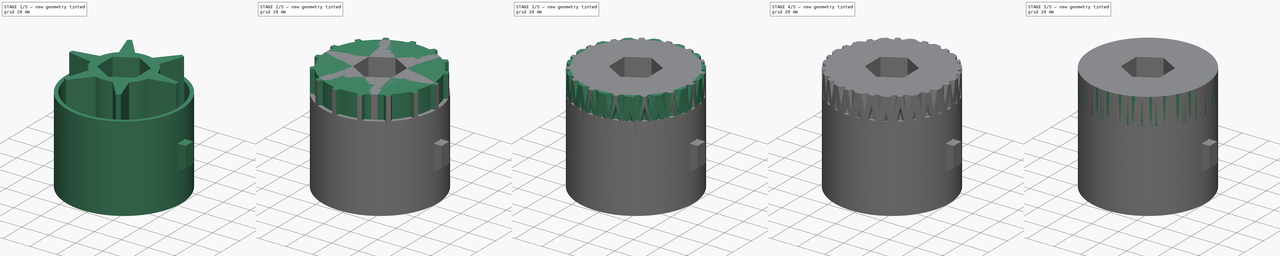
[diagram: build sequence overview — one tinted view per stage of 5, left to right]
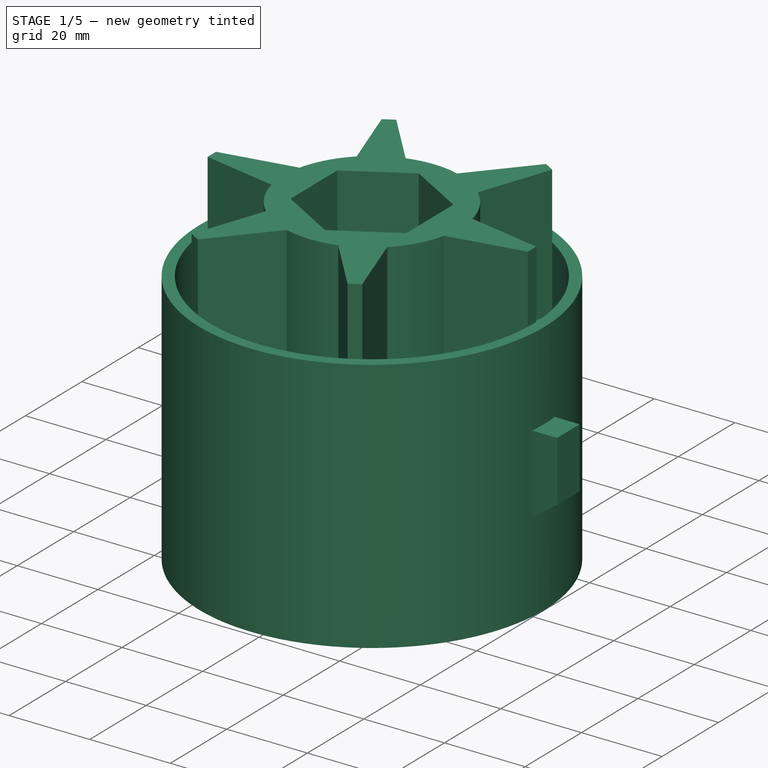
[diagram: stage 1 of 5 — iso view after this stage's code; geometry added in this stage tinted green]
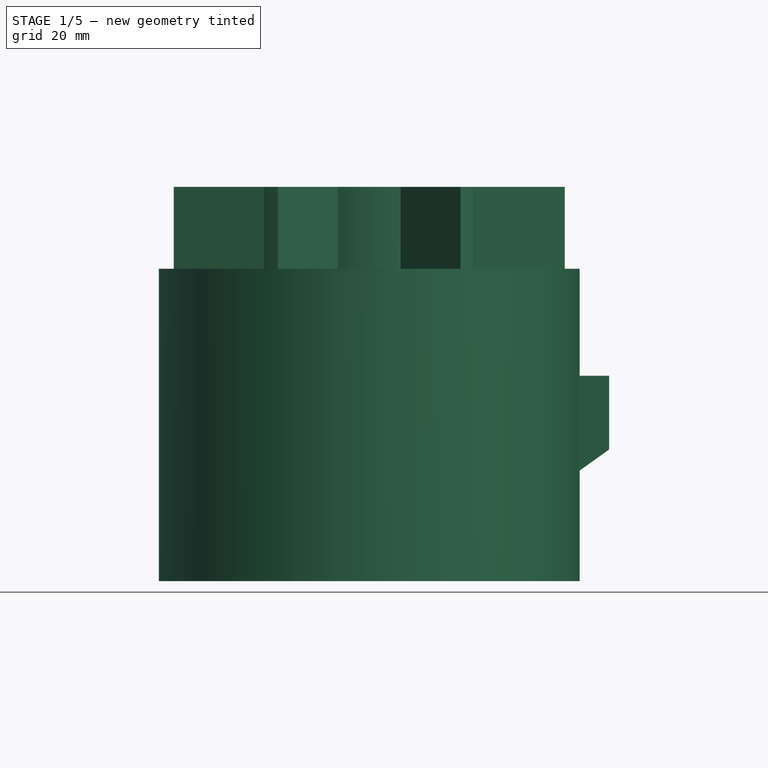
[diagram: stage 1 of 5 — front view after this stage's code; geometry added in this stage tinted green]
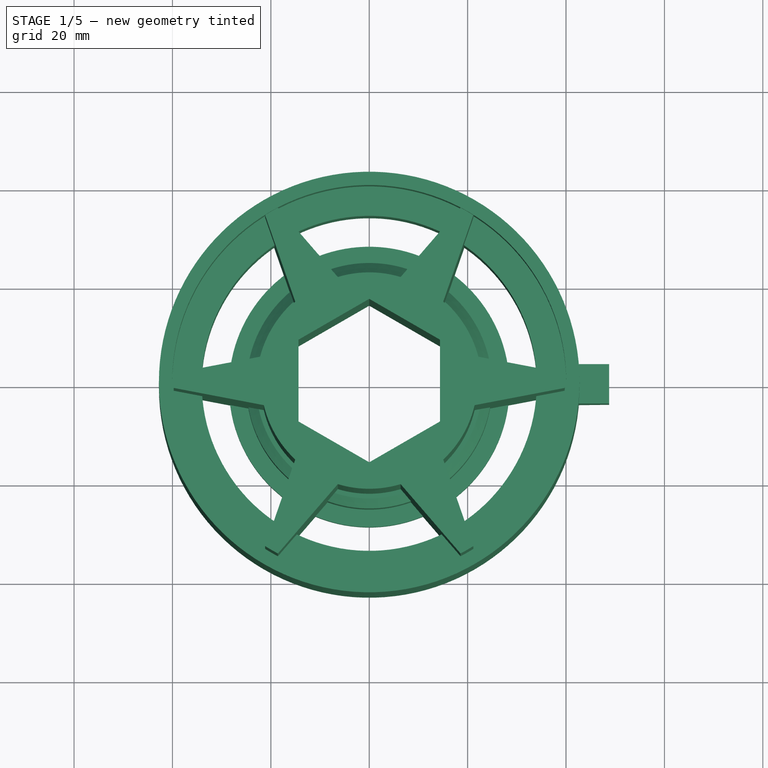
[diagram: stage 1 of 5 — top view after this stage's code; geometry added in this stage tinted green]
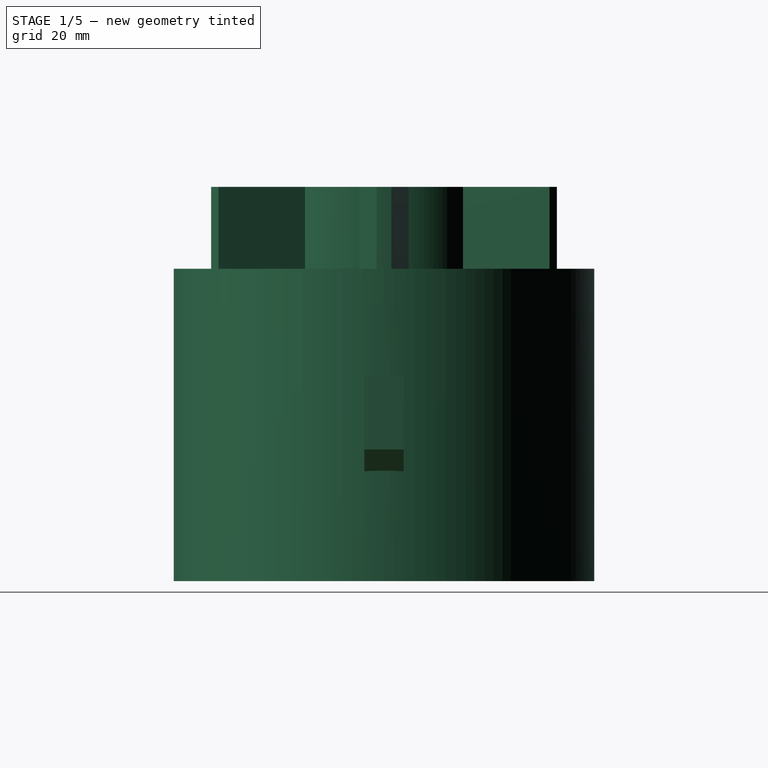
[diagram: stage 1 of 5 — right view after this stage's code; geometry added in this stage tinted green]
FCSTD DOCUMENT  (FreeCAD 1.1R20251125 (Git shallow))
Label: Flexicoil Meter Segments
License: All rights reserved
LicenseURL: https://en.wikipedia.org/wiki/All_rights_reserved
objects: App::Point×56, PartDesign::Body×56, Sketcher::SketchObject×40, PartDesign::FeatureBase×35, PartDesign::Pocket×23, PartDesign::SubShapeBinder×22, PartDesign::Revolution×13, PartDesign::Pad×10, PartDesign::AdditiveHelix×10, App::VarSet×7, App::DocumentObjectGroup×7, PartDesign::PolarPattern×5, PartDesign::Groove×4, PartDesign::Boolean×4, PartDesign::Chamfer×4
note: 438 computed .brp shape members not serialized (recipe doc carries the construction recipe); baked Part::Feature solids carry a one-line shape summary decoded from their .brp

FEATURE [PartDesign::Body] Body021  label="Canola Test 2"
  AllowCompound = false
  Group = -> [Clone010]
  Origin = -> Origin042
  Placement = pos=(50,-100,0) rot=(0,0,1;0rad)
  Tip = -> Clone010
FEATURE [App::VarSet] VarSet009  label="ExtraCoarseParameters"
  inner_diameter = 44
  num_flutes = 6
  root_width = 10
  tip_width = 3
  twist_degrees = 36
FEATURE [App::Point] Origin045
  Role = Origin
FEATURE [Sketcher::SketchObject] Sketch022
  ArcFitTolerance = 1e-06
  AttachmentSupport = -> [XY_Plane022]
  ExternalTypes = [0]
  FullyConstrained = true
  MakeInternals = false
  MapMode = 5
  expr: Constraints[10] = <<ExtraCoarseParameters>>.inner_diameter / 2
  expr: Constraints[15] = <<ExtraCoarseParameters>>.inner_diameter / 3
  expr: Constraints[4] = <<ExtraCoarseParameters>>.tip_width
  expr: Constraints[5] = <<ExtraCoarseParameters>>.root_width
  expr: Constraints[8] = <<Dimensions>>.segment_diameter
  sketch-geometry (6):
    g0: ArcOfCircle CenterX=0 CenterY=0 CenterZ=0 NormalX=0 NormalY=0 NormalZ=1 AngleXU=0 Radius=39.75 StartAngle=6.24544 EndAngle=6.32093
    g1: LineSegment [constr] StartX=39.7217 StartY=1.5 StartZ=0 EndX=39.7217 EndY=-1.5 EndZ=0
    g2: LineSegment StartX=21.4243 StartY=5 StartZ=0 EndX=39.7217 EndY=1.5 EndZ=0
    g3: LineSegment StartX=21.4243 StartY=-5 StartZ=0 EndX=39.7217 EndY=-1.5 EndZ=0
    g4: LineSegment StartX=21.4243 StartY=5 StartZ=0 EndX=14.6667 EndY=0 EndZ=0
    g5: LineSegment StartX=14.6667 StartY=0 StartZ=0 EndX=21.4243 EndY=-5 EndZ=0
  constraints (16):
    c: Coincident(g0,g-1)
    c: Coincident(g1,g0)
    c: Coincident(g1,g0)
    c: Vertical(g1)
    c: DistanceY(g1,g1) = 3
    c: DistanceY(g3,g2) = 10
    c: Coincident(g2,g0)
    c: Coincident(g3,g0)
    c: Diameter(g0) = 79.5
    c: Symmetric(g2,g3,g-1)
    c: Distance(g2,g0) = 22
    c: Coincident(g4,g2)
    c: PointOnObject(g4,g-1)
    c: Coincident(g5,g4)
    c: Coincident(g5,g3)
    c: DistanceX(g0,g4) = 14.6667
FEATURE [Sketcher::SketchObject] Sketch023
  ArcFitTolerance = 1e-06
  AttachmentSupport = -> [XY_Plane022]
  ExternalTypes = [0]
  FullyConstrained = true
  MakeInternals = false
  MapMode = 5
  expr: Constraints[19] = <<Dimensions>>.hex_width + <<Dimensions>>.hex_tolerance
  sketch-geometry (7):
    g0: LineSegment StartX=14.3875 StartY=8.30663 StartZ=0 EndX=-3.8938e-12 EndY=16.6133 EndZ=0
    g1: LineSegment StartX=-3.8938e-12 StartY=16.6133 StartZ=0 EndX=-14.3875 EndY=8.30663 EndZ=0
    g2: LineSegment StartX=-14.3875 StartY=8.30663 StartZ=0 EndX=-14.3875 EndY=-8.30663 EndZ=0
    g3: LineSegment StartX=-14.3875 StartY=-8.30663 StartZ=0 EndX=-3.8902e-12 EndY=-16.6133 EndZ=0
    g4: LineSegment StartX=-3.8902e-12 StartY=-16.6133 StartZ=0 EndX=14.3875 EndY=-8.30663 EndZ=0
    g5: LineSegment StartX=14.3875 StartY=-8.30663 StartZ=0 EndX=14.3875 EndY=8.30663 EndZ=0
    g6: Circle [constr] CenterX=0 CenterY=0 CenterZ=0 NormalX=0 NormalY=0 NormalZ=1 AngleXU=0 Radius=16.6133
  constraints (16):
    c: Coincident(g0,g1)
    c: Coincident(g1,g2)
    c: Coincident(g2,g3)
    c: Coincident(g3,g4)
    c: Coincident(g4,g5)
    c: Coincident(g5,g0)
    c: Equal(g0, g1-g5) x5
    c: PointOnObject(g0,g6)
    c: PointOnObject(g1,g6)
    c: PointOnObject(g2,g6)
    c: PointOnObject(g3,g6)
    c: PointOnObject(g4,g6)
    c: PointOnObject(g5,g6)
    c: Coincident(g6,g-1)
    c: Vertical(g2)
    c: DistanceX(g2,g4) = 28.775
FEATURE [Sketcher::SketchObject] Sketch024
  ArcFitTolerance = 1e-06
  AttachmentSupport = -> [XY_Plane022]
  ExternalTypes = [0]
  FullyConstrained = true
  MakeInternals = false
  MapMode = 5
  expr: Constraints[1] = <<ExtraCoarseParameters>>.inner_diameter
  sketch-geometry (1):
    g0: Circle CenterX=0 CenterY=0 CenterZ=0 NormalX=0 NormalY=0 NormalZ=1 AngleXU=0 Radius=22
  constraints (2):
    c: Coincident(g0,g-1)
    c: Diameter(g0) = 44
FEATURE [PartDesign::Pad] Pad011
  Direction = (0,0,1)
  Length = 80.15
  Length2 = 10
  Profile = -> Sketch024
  ReferenceAxis = -> Sketch024 [N_Axis]
  Refine = true
  SideType = 0
  Suppressed = false
  Type = 0
  Type2 = 0
  expr: Length = <<Dimensions>>.segment_width
FEATURE [PartDesign::Pad] Pad012
  BaseFeature = -> Pad011
  Direction = (0,0,1)
  Length = 80.15
  Length2 = 10
  Profile = -> Sketch022
  ReferenceAxis = -> Sketch022 [N_Axis]
  Refine = true
  SideType = 0
  Suppressed = false
  Type = 0
  Type2 = 0
  expr: Length = <<Dimensions>>.segment_width
FEATURE [PartDesign::PolarPattern] PolarPattern007
  Angle = 360
  Axis = -> Sketch022 [N_Axis]
  BaseFeature = -> Pad012
  Mode = 0
  Occurrences = 6
  Offset = 120
  Originals = -> [Pad012]
  Refine = true
  SpacingPattern = [0]
  Spacings = [-1,-1,-1,-1,-1]
  Suppressed = false
  TransformMode = 0
  expr: Occurrences = <<ExtraCoarseParameters>>.num_flutes
FEATURE [PartDesign::Pocket] Pocket014
  BaseFeature = -> PolarPattern007
  Direction = (0,0,-1)
  Length = 5
  Length2 = 5
  Profile = -> Sketch023
  ReferenceAxis = -> Sketch023 [N_Axis]
  Refine = true
  Reversed = true
  SideType = 0
  Suppressed = false
  Type = 1
  Type2 = 0
FEATURE [PartDesign::Body] Body050  label="Extra Coarse Right-Hand Spiral"
  AllowCompound = false
  Group = -> [Clone032]
  Origin = -> Origin100
  Placement = pos=(-50,0,0) rot=(0,0,1;0rad)
  Tip = -> Clone032
FEATURE [App::DocumentObjectGroup] Group004  label="Exta Coarse Segments (clones)"
  Group = -> [Body030,Body031,Body050,Body036]
FEATURE [App::Point] Origin103
  Role = Origin
FEATURE [Sketcher::SketchObject] Sketch032
  ArcFitTolerance = 1e-06
  AttachmentSupport = -> [Origin102]
  ExternalTypes = [0]
  FullyConstrained = true
  MakeInternals = false
  MapMode = 5
  Placement = pos=(0,0,0) rot=(1,0,0;1.5708rad)
  expr: Constraints[15] = (<<Dimensions>>.bearing_inner - <<Dimensions>>.bearing_tolerance) / 2
  sketch-geometry (6):
    g0: LineSegment StartX=0 StartY=0 StartZ=0 EndX=28.5 EndY=0 EndZ=0
    g1: LineSegment StartX=28.5 StartY=0 StartZ=0 EndX=28.5 EndY=6 EndZ=0
    g2: LineSegment StartX=28.5 StartY=6 StartZ=0 EndX=24.95 EndY=6 EndZ=0
    g3: LineSegment StartX=24.95 StartY=6 StartZ=0 EndX=24.95 EndY=22 EndZ=0
    g4: LineSegment StartX=24.95 StartY=22 StartZ=0 EndX=0 EndY=22 EndZ=0
    g5: LineSegment StartX=0 StartY=22 StartZ=0 EndX=0 EndY=0 EndZ=0
  constraints (17):
    c: Coincident(g0,g-1)
    c: PointOnObject(g0,g-1)
    c: Coincident(g1,g0)
    c: Vertical(g1)
    c: Coincident(g2,g1)
    c: Horizontal(g2)
    c: Coincident(g3,g2)
    c: Vertical(g3)
    c: Coincident(g4,g3)
    c: PointOnObject(g4,g-2)
    c: Horizontal(g4)
    c: Coincident(g5,g4)
    c: Coincident(g5,g0)
    c: DistanceY(g5,g5) = 22
    c: DistanceX(g0,g0) = 28.5
    c: DistanceX(g4,g4) = 24.95
    c: DistanceY(g3,g3) = 16
FEATURE [PartDesign::Revolution] Revolution010
  Angle = 360
  Angle2 = 0
  Axis = (0,2e-16,1)
  Base = (0,0,0)
  Profile = -> Sketch032
  ReferenceAxis = -> Sketch032 [V_Axis]
  Refine = true
  Reversed = true
  Suppressed = false
  Type = 0
FEATURE [Sketcher::SketchObject] Sketch033
  ArcFitTolerance = 1e-06
  AttachmentSupport = -> [Origin102]
  ExternalTypes = [0]
  FullyConstrained = true
  MakeInternals = false
  MapMode = 5
  expr: Constraints[19] = <<Dimensions>>.hex_width + <<Dimensions>>.hex_tolerance
  sketch-geometry (7):
    g0: LineSegment StartX=14.3875 StartY=8.30663 StartZ=0 EndX=0 EndY=16.6133 EndZ=0
    g1: LineSegment StartX=0 StartY=16.6133 StartZ=0 EndX=-14.3875 EndY=8.30663 EndZ=0
    g2: LineSegment StartX=-14.3875 StartY=8.30663 StartZ=0 EndX=-14.3875 EndY=-8.30663 EndZ=0
    g3: LineSegment StartX=-14.3875 StartY=-8.30663 StartZ=0 EndX=-1.8e-15 EndY=-16.6133 EndZ=0
    g4: LineSegment StartX=-9e-16 StartY=-16.6133 StartZ=0 EndX=14.3875 EndY=-8.30663 EndZ=0
    g5: LineSegment StartX=14.3875 StartY=-8.30663 StartZ=0 EndX=14.3875 EndY=8.30663 EndZ=0
    g6: Circle [constr] CenterX=0 CenterY=0 CenterZ=0 NormalX=0 NormalY=0 NormalZ=1 AngleXU=0 Radius=16.6133
  constraints (16):
    c: Coincident(g0,g1)
    c: Coincident(g1,g2)
    c: Coincident(g2,g3)
    c: Coincident(g3,g4)
    c: Coincident(g4,g5)
    c: Coincident(g5,g0)
    c: Equal(g0, g1-g5) x5
    c: PointOnObject(g0,g6)
    c: PointOnObject(g1,g6)
    c: PointOnObject(g2,g6)
    c: PointOnObject(g3,g6)
    c: PointOnObject(g4,g6)
    c: PointOnObject(g5,g6)
    c: Coincident(g6,g-1)
    c: Vertical(g5)
    c: DistanceX(g2,g4) = 28.775
FEATURE [PartDesign::Pocket] Pocket023
  BaseFeature = -> Revolution010
  Direction = (0,0,-1)
  Length = 5
  Length2 = 5
  Profile = -> Sketch033
  ReferenceAxis = -> Sketch033 [N_Axis]
  Refine = true
  Reversed = true
  SideType = 0
  Suppressed = false
  Type = 1
  Type2 = 0
FEATURE [Sketcher::SketchObject] Sketch034
  ArcFitTolerance = 1e-06
  AttachmentOffset = pos=(0,0,22) rot=(0,0,1;0rad)
  AttachmentSupport = -> [Origin102]
  ExternalTypes = [0]
  FullyConstrained = true
  MakeInternals = false
  MapMode = 5
  Placement = pos=(0,0,22) rot=(0,0,1;0rad)
  sketch-geometry (7):
    g0: LineSegment StartX=15.875 StartY=-9.16544 StartZ=0 EndX=15.875 EndY=9.16544 EndZ=0
    g1: LineSegment StartX=15.875 StartY=9.16544 StartZ=0 EndX=0 EndY=18.3309 EndZ=0
    g2: LineSegment StartX=0 StartY=18.3309 StartZ=0 EndX=-15.875 EndY=9.16544 EndZ=0
    g3: LineSegment StartX=-15.875 StartY=9.16544 StartZ=0 EndX=-15.875 EndY=-9.16544 EndZ=0
    g4: LineSegment StartX=-15.875 StartY=-9.16544 StartZ=0 EndX=0 EndY=-18.3309 EndZ=0
    g5: LineSegment StartX=0 StartY=-18.3309 StartZ=0 EndX=15.875 EndY=-9.16544 EndZ=0
    g6: Circle [constr] CenterX=0 CenterY=0 CenterZ=0 NormalX=0 NormalY=0 NormalZ=1 AngleXU=0 Radius=18.3309
  constraints (16):
    c: Coincident(g0,g1)
    c: Coincident(g1,g2)
    c: Coincident(g2,g3)
    c: Coincident(g3,g4)
    c: Coincident(g4,g5)
    c: Coincident(g5,g0)
    c: Equal(g0, g1-g5) x5
    c: PointOnObject(g0,g6)
    c: PointOnObject(g1,g6)
    c: PointOnObject(g2,g6)
    c: PointOnObject(g3,g6)
    c: PointOnObject(g4,g6)
    c: PointOnObject(g5,g6)
    c: Coincident(g6,g-1)
    c: Vertical(g0)
    c: DistanceX(g3,g0) = 31.75
FEATURE [PartDesign::Pocket] Pocket024
  BaseFeature = -> Pocket023
  Direction = (0,0,-1)
  Length = 1.25
  Length2 = 5
  Profile = -> Sketch034
  ReferenceAxis = -> Sketch034 [N_Axis]
  Refine = true
  SideType = 0
  Suppressed = false
  Type = 0
  Type2 = 0
FEATURE [PartDesign::Chamfer] Chamfer
  Angle = 45
  Base = -> Pocket024 [Edge29]
  BaseFeature = -> Pocket024
  ChamferType = 0
  FlipDirection = false
  Refine = true
  Size = 2
  Size2 = 1
  SupportTransform = false
  Suppressed = false
  UseAllEdges = false
FEATURE [PartDesign::Chamfer] Chamfer001
  Angle = 45
  Base = -> Chamfer [Edge35,Edge34,Edge33,Edge38,Edge37,Edge36]
  BaseFeature = -> Chamfer
  ChamferType = 0
  FlipDirection = false
  Refine = true
  Size = 0.5
  Size2 = 1
  SupportTransform = false
  Suppressed = false
  UseAllEdges = false
FEATURE [PartDesign::Body] Body051  label="Bearing bushing original"
  AllowCompound = false
  Group = -> [Sketch032,Revolution010,Sketch033,Pocket023,Sketch034,Pocket024,Chamfer,Chamfer001]
  Origin = -> Origin102
  Tip = -> Chamfer001
FEATURE [App::Point] Origin105  label="Origin106"
  Role = Origin
FEATURE [Sketcher::SketchObject] Sketch035
  ArcFitTolerance = 1e-06
  AttachmentSupport = -> [Origin104]
  ExternalTypes = [0]
  FullyConstrained = true
  MakeInternals = false
  MapMode = 5
  Placement = pos=(0,0,0) rot=(1,0,0;1.5708rad)
  expr: Constraints[13] = (<<Dimensions>>.bearing_inner - <<Dimensions>>.bearing_tolerance) / 2
  sketch-geometry (6):
    g0: LineSegment StartX=0 StartY=0 StartZ=0 EndX=24.95 EndY=0 EndZ=0
    g1: LineSegment StartX=24.95 StartY=0 StartZ=0 EndX=28.5 EndY=3 EndZ=0
    g2: LineSegment StartX=28.5 StartY=3 StartZ=0 EndX=24.95 EndY=3 EndZ=0
    g3: LineSegment StartX=24.95 StartY=3 StartZ=0 EndX=24.95 EndY=19 EndZ=0
    g4: LineSegment StartX=24.95 StartY=19 StartZ=0 EndX=0 EndY=19 EndZ=0
    g5: LineSegment StartX=0 StartY=19 StartZ=0 EndX=0 EndY=0 EndZ=0
  constraints (17):
    c: Coincident(g0,g-1)
    c: PointOnObject(g0,g-1)
    c: Coincident(g1,g0)
    c: Coincident(g2,g1)
    c: Horizontal(g2)
    c: Coincident(g3,g2)
    c: Vertical(g3)
    c: Coincident(g4,g3)
    c: PointOnObject(g4,g-2)
    c: Horizontal(g4)
    c: Coincident(g5,g4)
    c: Coincident(g5,g0)
    c: DistanceY(g5,g5) = 19
    c: DistanceX(g4,g4) = 24.95
    c: DistanceY(g3,g3) = 16
    c: DistanceX(g0,g1) = 28.5
    c: Vertical(g0,g2)
FEATURE [PartDesign::Revolution] Revolution011
  Angle = 360
  Angle2 = 0
  Axis = (0,2e-16,1)
  Base = (0,0,0)
  Profile = -> Sketch035
  ReferenceAxis = -> Sketch035 [V_Axis]
  Refine = true
  Reversed = true
  Suppressed = false
  Type = 0
FEATURE [Sketcher::SketchObject] Sketch036
  ArcFitTolerance = 1e-06
  AttachmentSupport = -> [Origin104]
  ExternalTypes = [0]
  FullyConstrained = true
  MakeInternals = false
  MapMode = 5
  expr: Constraints[19] = <<Dimensions>>.hex_width + <<Dimensions>>.hex_tolerance
  sketch-geometry (7):
    g0: LineSegment StartX=14.3875 StartY=8.30663 StartZ=0 EndX=0 EndY=16.6133 EndZ=0
    g1: LineSegment StartX=0 StartY=16.6133 StartZ=0 EndX=-14.3875 EndY=8.30663 EndZ=0
    g2: LineSegment StartX=-14.3875 StartY=8.30663 StartZ=0 EndX=-14.3875 EndY=-8.30663 EndZ=0
    g3: LineSegment StartX=-14.3875 StartY=-8.30663 StartZ=0 EndX=-1.8e-15 EndY=-16.6133 EndZ=0
    g4: LineSegment StartX=-9e-16 StartY=-16.6133 StartZ=0 EndX=14.3875 EndY=-8.30663 EndZ=0
    g5: LineSegment StartX=14.3875 StartY=-8.30663 StartZ=0 EndX=14.3875 EndY=8.30663 EndZ=0
    g6: Circle [constr] CenterX=0 CenterY=0 CenterZ=0 NormalX=0 NormalY=0 NormalZ=1 AngleXU=0 Radius=16.6133
  constraints (16):
    c: Coincident(g0,g1)
    c: Coincident(g1,g2)
    c: Coincident(g2,g3)
    c: Coincident(g3,g4)
    c: Coincident(g4,g5)
    c: Coincident(g5,g0)
    c: Equal(g0, g1-g5) x5
    c: PointOnObject(g0,g6)
    c: PointOnObject(g1,g6)
    c: PointOnObject(g2,g6)
    c: PointOnObject(g3,g6)
    c: PointOnObject(g4,g6)
    c: PointOnObject(g5,g6)
    c: Coincident(g6,g-1)
    c: Vertical(g5)
    c: DistanceX(g2,g4) = 28.775
FEATURE [PartDesign::Pocket] Pocket025
  BaseFeature = -> Revolution011
  Direction = (0,0,-1)
  Length = 5
  Length2 = 5
  Profile = -> Sketch036
  ReferenceAxis = -> Sketch036 [N_Axis]
  Refine = true
  Reversed = true
  SideType = 0
  Suppressed = false
  Type = 1
  Type2 = 0
FEATURE [Sketcher::SketchObject] Sketch037
  ArcFitTolerance = 1e-06
  AttachmentOffset = pos=(0,0,19) rot=(0,0,1;0rad)
  AttachmentSupport = -> [Origin104]
  ExternalTypes = [0]
  FullyConstrained = true
  MakeInternals = false
  MapMode = 5
  Placement = pos=(0,0,19) rot=(0,0,1;0rad)
  sketch-geometry (7):
    g0: LineSegment StartX=15.875 StartY=-9.16544 StartZ=0 EndX=15.875 EndY=9.16544 EndZ=0
    g1: LineSegment StartX=15.875 StartY=9.16544 StartZ=0 EndX=0 EndY=18.3309 EndZ=0
    g2: LineSegment StartX=0 StartY=18.3309 StartZ=0 EndX=-15.875 EndY=9.16544 EndZ=0
    g3: LineSegment StartX=-15.875 StartY=9.16544 StartZ=0 EndX=-15.875 EndY=-9.16544 EndZ=0
    g4: LineSegment StartX=-15.875 StartY=-9.16544 StartZ=0 EndX=0 EndY=-18.3309 EndZ=0
    g5: LineSegment StartX=0 StartY=-18.3309 StartZ=0 EndX=15.875 EndY=-9.16544 EndZ=0
    g6: Circle [constr] CenterX=0 CenterY=0 CenterZ=0 NormalX=0 NormalY=0 NormalZ=1 AngleXU=0 Radius=18.3309
  constraints (16):
    c: Coincident(g0,g1)
    c: Coincident(g1,g2)
    c: Coincident(g2,g3)
    c: Coincident(g3,g4)
    c: Coincident(g4,g5)
    c: Coincident(g5,g0)
    c: Equal(g0, g1-g5) x5
    c: PointOnObject(g0,g6)
    c: PointOnObject(g1,g6)
    c: PointOnObject(g2,g6)
    c: PointOnObject(g3,g6)
    c: PointOnObject(g4,g6)
    c: PointOnObject(g5,g6)
    c: Coincident(g6,g-1)
    c: Vertical(g0)
    c: DistanceX(g3,g0) = 31.75
FEATURE [PartDesign::Pocket] Pocket026
  BaseFeature = -> Pocket025
  Direction = (0,0,-1)
  Length = 1.25
  Length2 = 5
  Profile = -> Sketch037
  ReferenceAxis = -> Sketch037 [N_Axis]
  Refine = true
  SideType = 0
  Suppressed = false
  Type = 0
  Type2 = 0
FEATURE [PartDesign::Chamfer] Chamfer002
  Angle = 45
  Base = -> Pocket026 [Edge29]
  BaseFeature = -> Pocket026
  ChamferType = 0
  FlipDirection = false
  Refine = true
  Size = 2
  Size2 = 1
  SupportTransform = false
  Suppressed = false
  UseAllEdges = false
FEATURE [PartDesign::Chamfer] Chamfer003
  Angle = 45
  Base = -> Chamfer002 [Edge35,Edge34,Edge33,Edge38,Edge37,Edge36]
  BaseFeature = -> Chamfer002
  ChamferType = 0
  FlipDirection = false
  Refine = true
  Size = 0.5
  Size2 = 1
  SupportTransform = false
  Suppressed = false
  UseAllEdges = false
FEATURE [Sketcher::SketchObject] Sketch038
  ArcFitTolerance = 1e-06
  AttachmentSupport = -> [Origin104]
  ExternalTypes = [0]
  FullyConstrained = true
  MakeInternals = false
  MapMode = 5
  Placement = pos=(0,0,0) rot=(1,0,0;1.5708rad)
  sketch-geometry (5):
    g0: ArcOfCircle CenterX=0 CenterY=2.5 CenterZ=0 NormalX=0 NormalY=0 NormalZ=1 AngleXU=0 Radius=2.5 StartAngle=0 EndAngle=3.14159
    g1: LineSegment StartX=-2.5 StartY=2.5 StartZ=0 EndX=-2.5 EndY=-2.5 EndZ=0
    g2: LineSegment StartX=-2.5 StartY=-2.5 StartZ=0 EndX=2.5 EndY=-2.5 EndZ=0
    g3: LineSegment StartX=2.5 StartY=-2.5 StartZ=0 EndX=2.5 EndY=2.5 EndZ=0
    g4: LineSegment [constr] StartX=2.5 StartY=2.5 StartZ=0 EndX=-2.5 EndY=2.5 EndZ=0
  constraints (15):
    c: PointOnObject(g0,g-2)
    c: Coincident(g1,g2)
    c: Coincident(g2,g3)
    c: Coincident(g3,g4)
    c: Coincident(g4,g1)
    c: Vertical(g1)
    c: Vertical(g3)
    c: Horizontal(g2)
    c: Horizontal(g4)
    c: Coincident(g1,g0)
    c: Coincident(g3,g0)
    c: PointOnObject(g0,g4)
    c: DistanceX(g2,g2) = 5
    c: DistanceY(g-1,g0) = 2.5
    c: DistanceY(g1,g1) = 5
FEATURE [PartDesign::Pocket] Pocket027
  BaseFeature = -> Chamfer003
  Direction = (0,1,-2e-16)
  Length = 5
  Length2 = 5
  Profile = -> Sketch038
  ReferenceAxis = -> Sketch038 [N_Axis]
  Refine = true
  SideType = 2
  Suppressed = false
  Type = 1
  Type2 = 0
FEATURE [PartDesign::Body] Body052  label="Bearing end bushing original"
  AllowCompound = false
  Group = -> [Sketch035,Revolution011,Sketch036,Pocket025,Sketch037,Pocket026,Chamfer002,Chamfer003,Sketch038,Pocket027]
  Origin = -> Origin104
  Tip = -> Pocket027
FEATURE [App::VarSet] VarSet011  label="SpacerParameters"
  nub_position = 0
  wall_thichness = 6
  width = 63.5
FEATURE [App::Point] Origin107  label="Origin108"
  Role = Origin
FEATURE [Sketcher::SketchObject] Sketch039
  ArcFitTolerance = 1e-06
  AttachmentSupport = -> [Origin106]
  ExternalTypes = [0]
  FullyConstrained = true
  MakeInternals = false
  MapMode = 5
  Placement = pos=(0,0,0) rot=(1,0,0;1.5708rad)
  expr: Constraints[19] = <<SpacerParameters>>.wall_thichness
  expr: Constraints[23] = <<SpacerParameters>>.width
  expr: Constraints[5] = (<<Dimensions>>.bearing_outer + <<Dimensions>>.bearing_tolerance) / 2
  expr: Constraints[8] = <<Dimensions>>.segment_diameter_tight / 2
  sketch-geometry (8):
    g0: LineSegment StartX=40.05 StartY=0 StartZ=0 EndX=40.05 EndY=16 EndZ=0
    g1: LineSegment StartX=40.05 StartY=16 StartZ=0 EndX=34.05 EndY=19.4641 EndZ=0
    g2: LineSegment StartX=34.05 StartY=19.4641 StartZ=0 EndX=34.05 EndY=47.5 EndZ=0
    g3: LineSegment StartX=40.05 StartY=0 StartZ=0 EndX=42.75 EndY=0 EndZ=0
    g4: LineSegment StartX=34.05 StartY=47.5 StartZ=0 EndX=40.05 EndY=47.5 EndZ=0
    g5: LineSegment StartX=40.05 StartY=47.5 StartZ=0 EndX=40.05 EndY=63.5 EndZ=0
    g6: LineSegment StartX=40.05 StartY=63.5 StartZ=0 EndX=42.75 EndY=63.5 EndZ=0
    g7: LineSegment StartX=42.75 StartY=63.5 StartZ=0 EndX=42.75 EndY=0 EndZ=0
  constraints (24):
    c: PointOnObject(g0,g-1)
    c: Vertical(g0)
    c: Coincident(g1,g0)
    c: Coincident(g2,g1)
    c: Vertical(g2)
    c: DistanceX(g-1,g0) = 40.05
    c: Coincident(g3,g0)
    c: PointOnObject(g3,g-1)
    c: DistanceX(g-1,g3) = 42.75
    c: Coincident(g4,g2)
    c: Horizontal(g4)
    c: Coincident(g5,g4)
    c: Vertical(g5)
    c: Coincident(g6,g5)
    c: Horizontal(g6)
    c: Coincident(g7,g6)
    c: Coincident(g7,g3)
    c: Vertical(g4,g0)
    c: Vertical(g7)
    c: DistanceX(g4,g4) = 6
    c: DistanceY(g0,g0) = 16
    c: Equal(g5,g0)
    c: Angle(g1,g0) = 2.0944
    c: DistanceY(g7,g7) = 63.5
FEATURE [PartDesign::Revolution] Revolution012
  Angle = 360
  Angle2 = 0
  Axis = (0,2e-16,1)
  Base = (0,0,0)
  Profile = -> Sketch039
  ReferenceAxis = -> Sketch039 [V_Axis]
  Refine = true
  Reversed = true
  Suppressed = false
  Type = 0
FEATURE [PartDesign::Body] Body053  label="Spacer original"
  AllowCompound = false
  Group = -> [Sketch039,Revolution012]
  Origin = -> Origin106
  Tip = -> Revolution012
FEATURE [App::Point] Origin109  label="Origin111"
  Role = Origin
FEATURE [Sketcher::SketchObject] Sketch040
  ArcFitTolerance = 1e-06
  AttachmentSupport = -> [Origin108]
  ExternalTypes = [0]
  FullyConstrained = true
  MakeInternals = false
  MapMode = 5
  Placement = pos=(0,0,0) rot=(1,0,0;1.5708rad)
  expr: Constraints[19] = <<SpacerParameters>>.wall_thichness
  expr: Constraints[23] = <<SpacerParameters>>.width
  expr: Constraints[5] = (<<Dimensions>>.bearing_outer + <<Dimensions>>.bearing_tolerance) / 2
  expr: Constraints[8] = <<Dimensions>>.segment_diameter_tight / 2
  sketch-geometry (8):
    g0: LineSegment StartX=40.05 StartY=0 StartZ=0 EndX=40.05 EndY=16 EndZ=0
    g1: LineSegment StartX=40.05 StartY=16 StartZ=0 EndX=34.05 EndY=19.4641 EndZ=0
    g2: LineSegment StartX=34.05 StartY=19.4641 StartZ=0 EndX=34.05 EndY=47.5 EndZ=0
    g3: LineSegment StartX=40.05 StartY=0 StartZ=0 EndX=42.75 EndY=0 EndZ=0
    g4: LineSegment StartX=34.05 StartY=47.5 StartZ=0 EndX=40.05 EndY=47.5 EndZ=0
    g5: LineSegment StartX=40.05 StartY=47.5 StartZ=0 EndX=40.05 EndY=63.5 EndZ=0
    g6: LineSegment StartX=40.05 StartY=63.5 StartZ=0 EndX=42.75 EndY=63.5 EndZ=0
    g7: LineSegment StartX=42.75 StartY=63.5 StartZ=0 EndX=42.75 EndY=0 EndZ=0
  constraints (24):
    c: PointOnObject(g0,g-1)
    c: Vertical(g0)
    c: Coincident(g1,g0)
    c: Coincident(g2,g1)
    c: Vertical(g2)
    c: DistanceX(g-1,g0) = 40.05
    c: Coincident(g3,g0)
    c: PointOnObject(g3,g-1)
    c: DistanceX(g-1,g3) = 42.75
    c: Coincident(g4,g2)
    c: Horizontal(g4)
    c: Coincident(g5,g4)
    c: Vertical(g5)
    c: Coincident(g6,g5)
    c: Horizontal(g6)
    c: Coincident(g7,g6)
    c: Coincident(g7,g3)
    c: Vertical(g4,g0)
    c: Vertical(g7)
    c: DistanceX(g4,g4) = 6
    c: DistanceY(g0,g0) = 16
    c: Equal(g5,g0)
    c: Angle(g1,g0) = 2.0944
    c: DistanceY(g7,g7) = 63.5
FEATURE [PartDesign::Revolution] Revolution013
  Angle = 360
  Angle2 = 0
  Axis = (0,2e-16,1)
  Base = (0,0,0)
  Profile = -> Sketch040
  ReferenceAxis = -> Sketch040 [V_Axis]
  Refine = true
  Reversed = true
  Suppressed = false
  Type = 0
FEATURE [Sketcher::SketchObject] Sketch041
  ArcFitTolerance = 1e-06
  AttachmentSupport = -> [Origin108]
  ExternalTypes = [0]
  FullyConstrained = true
  MakeInternals = false
  MapMode = 5
  Placement = pos=(0,0,0) rot=(1,0,0;1.5708rad)
  expr: Constraints[10] = (<<SpacerParameters>>.nub_position ? nub_position : <<SpacerParameters>>.width / 2) + 10 mm
  expr: Constraints[11] = <<Dimensions>>.segment_diameter_tight / 2 - 1 mm
  sketch-geometry (4):
    g0: LineSegment StartX=41.75 StartY=41.75 StartZ=0 EndX=48.75 EndY=41.75 EndZ=0
    g1: LineSegment StartX=48.75 StartY=41.75 StartZ=0 EndX=48.75 EndY=26.75 EndZ=0
    g2: LineSegment StartX=48.75 StartY=26.75 StartZ=0 EndX=41.75 EndY=21.75 EndZ=0
    g3: LineSegment StartX=41.75 StartY=41.75 StartZ=0 EndX=41.75 EndY=21.75 EndZ=0
  constraints (12):
    c: Horizontal(g0)
    c: Coincident(g1,g0)
    c: Vertical(g1)
    c: Coincident(g2,g1)
    c: Coincident(g3,g0)
    c: Coincident(g3,g2)
    c: Vertical(g3)
    c: DistanceX(g0,g0) = 7
    c: DistanceY(g3,g3) = 20
    c: DistanceY(g1,g1) = 15
    c: DistanceY(g-1,g0) = 41.75
    c: DistanceX(g-1,g2) = 41.75
FEATURE [PartDesign::Pad] Pad
  BaseFeature = -> Revolution013
  Direction = (0,-1,2e-16)
  Length = 8
  Length2 = 10
  Profile = -> Sketch041
  ReferenceAxis = -> Sketch041 [N_Axis]
  Refine = true
  SideType = 2
  Suppressed = false
  Type = 0
  Type2 = 0
FEATURE [PartDesign::Body] Body054  label="Spacer With Nub original"
  AllowCompound = false
  Group = -> [Sketch040,Revolution013,Sketch041,Pad]
  Origin = -> Origin108
  Tip = -> Pad
FEATURE [App::DocumentObjectGroup] Group005  label="Spacers and Bushings (base objects, do not transform)"
  Group = -> [Body051,Body052,Body053,Body054]
FEATURE [App::Point] Origin111  label="Origin113"
  Role = Origin
FEATURE [PartDesign::FeatureBase] Clone033
  BaseFeature = -> Body051
  Suppressed = false
FEATURE [PartDesign::Body] Body055  label="Bearing bushing"
  AllowCompound = false
  Group = -> [Clone033]
  Origin = -> Origin110
  Placement = pos=(-60,60,0) rot=(0,0,1;0rad)
  Tip = -> Clone033
FEATURE [App::Point] Origin113  label="Origin115"
  Role = Origin
FEATURE [PartDesign::FeatureBase] Clone034
  BaseFeature = -> Body052
  Suppressed = false
FEATURE [PartDesign::Body] Body056  label="Bearing end bushing"
  AllowCompound = false
  Group = -> [Clone034]
  Origin = -> Origin112
  Placement = pos=(60,-60,0) rot=(0,0,1;0rad)
  Tip = -> Clone034
FEATURE [App::Point] Origin115  label="Origin118"
  Role = Origin
FEATURE [PartDesign::FeatureBase] Clone035
  BaseFeature = -> Body053
  Suppressed = false
FEATURE [PartDesign::Body] Body057  label="Spacer without nub"
  AllowCompound = false
  Group = -> [Clone035]
  Origin = -> Origin114
  Placement = pos=(60,60,0) rot=(0,0,1;0rad)
  Tip = -> Clone035
FEATURE [App::Point] Origin117  label="Origin121"
  Role = Origin
FEATURE [PartDesign::FeatureBase] Clone036
  BaseFeature = -> Body054
  Suppressed = false
FEATURE [PartDesign::Body] Body058  label="Spacer with nub"
  AllowCompound = false
  Group = -> [Clone036]
  Origin = -> Origin116
  Placement = pos=(-60,-60,0) rot=(0,0,1;0rad)
  Tip = -> Clone036
FEATURE [App::DocumentObjectGroup] Group006  label="Spacers and Bushings (clones)"
  Group = -> [Body055,Body056,Body057,Body058]
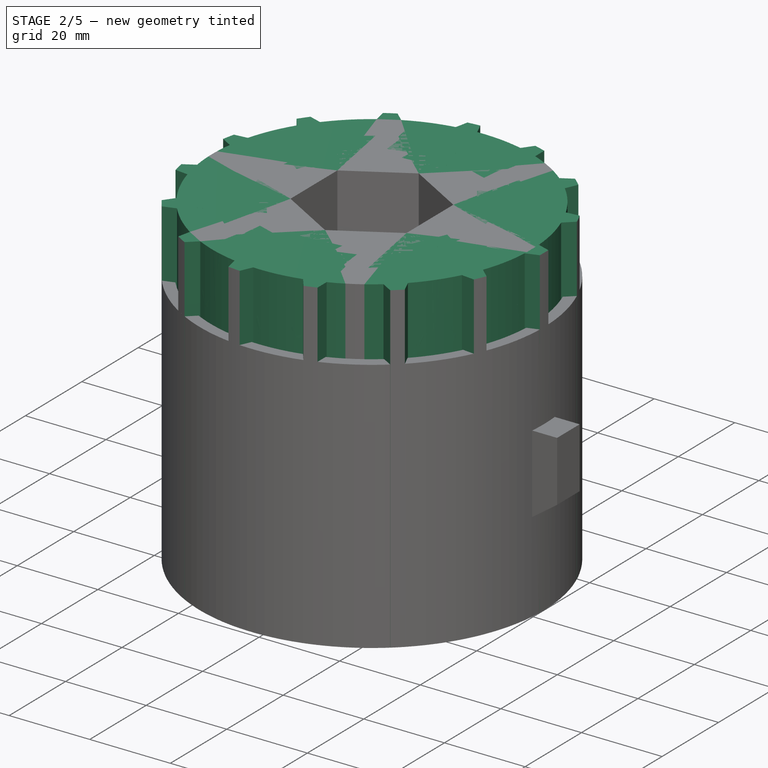
[diagram: stage 2 of 5 — iso view after this stage's code; geometry added in this stage tinted green]
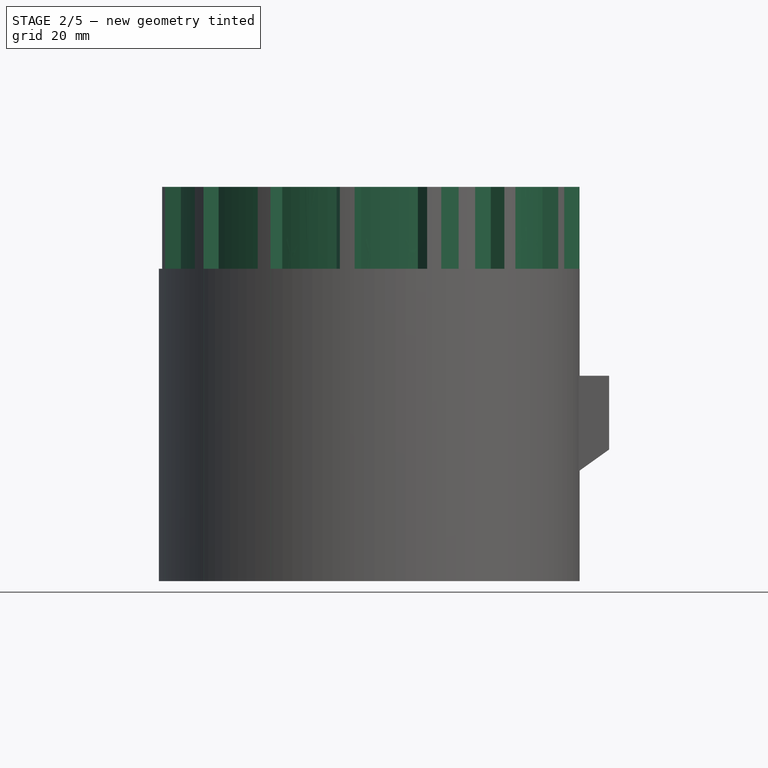
[diagram: stage 2 of 5 — front view after this stage's code; geometry added in this stage tinted green]
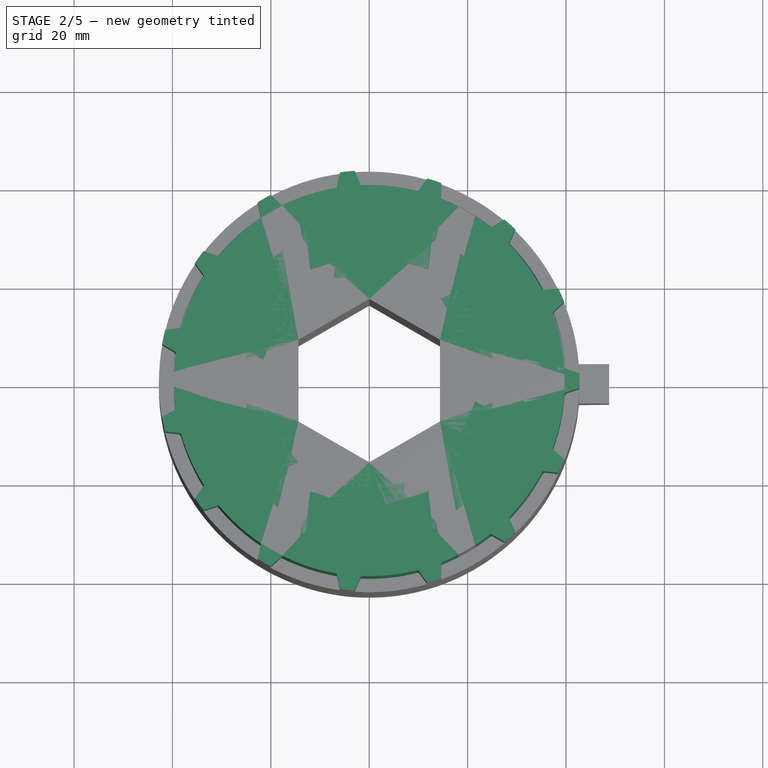
[diagram: stage 2 of 5 — top view after this stage's code; geometry added in this stage tinted green]
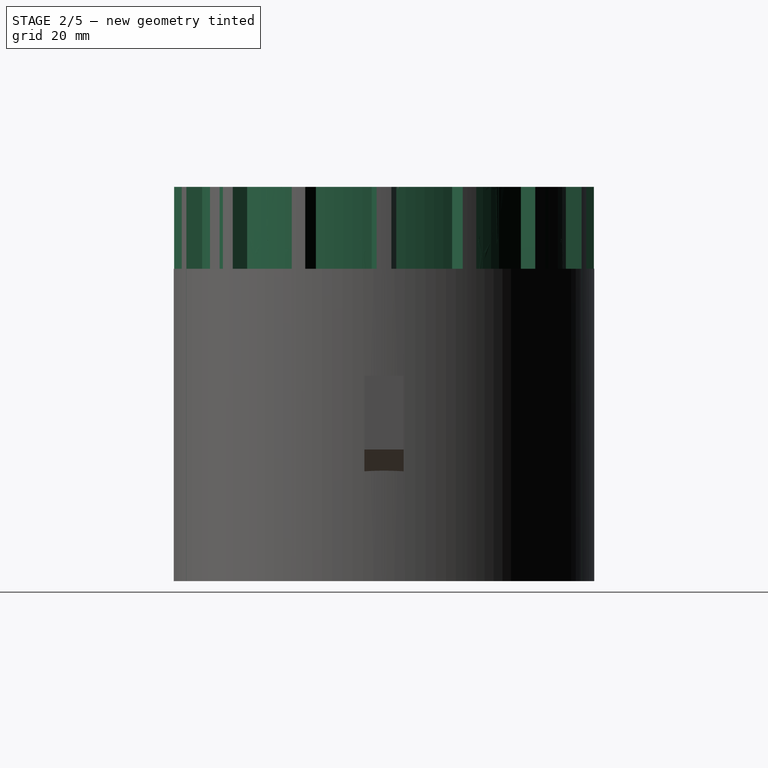
[diagram: stage 2 of 5 — right view after this stage's code; geometry added in this stage tinted green]
FEATURE [App::Point] Origin001
  Role = Origin
FEATURE [Sketcher::SketchObject] Sketch
  ArcFitTolerance = 1e-06
  AttachmentSupport = -> [XY_Plane]
  ExternalTypes = [0]
  FullyConstrained = true
  MakeInternals = false
  MapMode = 5
  expr: Constraints[10] = <<CoarseParameters>>.inner_diameter / 2
  expr: Constraints[15] = <<CoarseParameters>>.inner_diameter / 3
  expr: Constraints[4] = <<CoarseParameters>>.tip_width
  expr: Constraints[5] = <<CoarseParameters>>.root_width
  expr: Constraints[8] = <<Dimensions>>.segment_diameter
  sketch-geometry (6):
    g0: ArcOfCircle CenterX=0 CenterY=0 CenterZ=0 NormalX=0 NormalY=0 NormalZ=1 AngleXU=0 Radius=39.75 StartAngle=6.24544 EndAngle=6.32093
    g1: LineSegment [constr] StartX=39.7217 StartY=1.5 StartZ=0 EndX=39.7217 EndY=-1.5 EndZ=0
    g2: LineSegment StartX=25.0998 StartY=4.5 StartZ=0 EndX=39.7217 EndY=1.5 EndZ=0
    g3: LineSegment StartX=25.0998 StartY=-4.5 StartZ=0 EndX=39.7217 EndY=-1.5 EndZ=0
    g4: LineSegment StartX=25.0998 StartY=4.5 StartZ=0 EndX=17 EndY=0 EndZ=0
    g5: LineSegment StartX=17 StartY=0 StartZ=0 EndX=25.0998 EndY=-4.5 EndZ=0
  constraints (16):
    c: Coincident(g0,g-1)
    c: Coincident(g1,g0)
    c: Coincident(g1,g0)
    c: Vertical(g1)
    c: DistanceY(g1,g1) = 3
    c: DistanceY(g3,g2) = 9
    c: Coincident(g2,g0)
    c: Coincident(g3,g0)
    c: Diameter(g0) = 79.5
    c: Symmetric(g2,g3,g-1)
    c: Distance(g2,g0) = 25.5
    c: Coincident(g4,g2)
    c: PointOnObject(g4,g-1)
    c: Coincident(g5,g4)
    c: Coincident(g5,g3)
    c: DistanceX(g0,g4) = 17
FEATURE [Sketcher::SketchObject] Sketch001
  ArcFitTolerance = 1e-06
  AttachmentSupport = -> [XY_Plane]
  ExternalTypes = [0]
  FullyConstrained = true
  MakeInternals = false
  MapMode = 5
  expr: Constraints[19] = <<Dimensions>>.hex_width + <<Dimensions>>.hex_tolerance
  sketch-geometry (7):
    g0: LineSegment StartX=14.3875 StartY=8.30663 StartZ=0 EndX=-3.8938e-12 EndY=16.6133 EndZ=0
    g1: LineSegment StartX=-3.8938e-12 StartY=16.6133 StartZ=0 EndX=-14.3875 EndY=8.30663 EndZ=0
    g2: LineSegment StartX=-14.3875 StartY=8.30663 StartZ=0 EndX=-14.3875 EndY=-8.30663 EndZ=0
    g3: LineSegment StartX=-14.3875 StartY=-8.30663 StartZ=0 EndX=-3.8902e-12 EndY=-16.6133 EndZ=0
    g4: LineSegment StartX=-3.8902e-12 StartY=-16.6133 StartZ=0 EndX=14.3875 EndY=-8.30663 EndZ=0
    g5: LineSegment StartX=14.3875 StartY=-8.30663 StartZ=0 EndX=14.3875 EndY=8.30663 EndZ=0
    g6: Circle [constr] CenterX=0 CenterY=0 CenterZ=0 NormalX=0 NormalY=0 NormalZ=1 AngleXU=0 Radius=16.6133
  constraints (16):
    c: Coincident(g0,g1)
    c: Coincident(g1,g2)
    c: Coincident(g2,g3)
    c: Coincident(g3,g4)
    c: Coincident(g4,g5)
    c: Coincident(g5,g0)
    c: Equal(g0, g1-g5) x5
    c: PointOnObject(g0,g6)
    c: PointOnObject(g1,g6)
    c: PointOnObject(g2,g6)
    c: PointOnObject(g3,g6)
    c: PointOnObject(g4,g6)
    c: PointOnObject(g5,g6)
    c: Coincident(g6,g-1)
    c: Vertical(g2)
    c: DistanceX(g2,g4) = 28.775
FEATURE [Sketcher::SketchObject] Sketch002
  ArcFitTolerance = 1e-06
  AttachmentSupport = -> [XY_Plane]
  ExternalTypes = [0]
  FullyConstrained = true
  MakeInternals = false
  MapMode = 5
  expr: Constraints[1] = <<CoarseParameters>>.inner_diameter
  sketch-geometry (1):
    g0: Circle CenterX=0 CenterY=0 CenterZ=0 NormalX=0 NormalY=0 NormalZ=1 AngleXU=0 Radius=25.5
  constraints (2):
    c: Coincident(g0,g-1)
    c: Diameter(g0) = 51
FEATURE [PartDesign::Pad] Pad001
  Direction = (0,0,1)
  Length = 80.15
  Length2 = 10
  Profile = -> Sketch002
  ReferenceAxis = -> Sketch002 [N_Axis]
  Refine = true
  SideType = 0
  Suppressed = false
  Type = 0
  Type2 = 0
  expr: Length = <<Dimensions>>.segment_width
FEATURE [PartDesign::Pad] Pad006
  BaseFeature = -> Pad001
  Direction = (0,0,1)
  Length = 80.15
  Length2 = 10
  Profile = -> Sketch
  ReferenceAxis = -> Sketch [N_Axis]
  Refine = true
  SideType = 0
  Suppressed = false
  Type = 0
  Type2 = 0
  expr: Length = <<Dimensions>>.segment_width
FEATURE [PartDesign::PolarPattern] PolarPattern
  Angle = 360
  Axis = -> Sketch [N_Axis]
  BaseFeature = -> Pad006
  Mode = 0
  Occurrences = 10
  Offset = 120
  Originals = -> [Pad006]
  Refine = true
  SpacingPattern = [0]
  Spacings = [-1,-1,-1,-1,-1,-1,-1,-1,-1]
  Suppressed = false
  TransformMode = 0
  expr: Occurrences = <<CoarseParameters>>.num_flutes
FEATURE [PartDesign::Pocket] Pocket
  BaseFeature = -> PolarPattern
  Direction = (0,0,-1)
  Length = 5
  Length2 = 5
  Profile = -> Sketch001
  ReferenceAxis = -> Sketch001 [N_Axis]
  Refine = true
  Reversed = true
  SideType = 0
  Suppressed = false
  Type = 1
  Type2 = 0
FEATURE [App::Point] Origin011
  Role = Origin
FEATURE [Sketcher::SketchObject] Sketch006
  ArcFitTolerance = 1e-06
  AttachmentSupport = -> [XY_Plane005]
  ExternalTypes = [0]
  FullyConstrained = true
  MakeInternals = false
  MapMode = 5
  expr: Constraints[10] = (<<Dimensions>>.segment_diameter_tight - <<ExtraFineFlutedParameters>>.flute_depth * 2) / 2
  expr: Constraints[15] = (<<Dimensions>>.segment_diameter_tight - <<ExtraFineFlutedParameters>>.flute_depth * 2) / 3
  expr: Constraints[4] = <<ExtraFineFlutedParameters>>.tip_width
  expr: Constraints[5] = <<ExtraFineFlutedParameters>>.root_width
  expr: Constraints[8] = <<Dimensions>>.segment_diameter_tight
  sketch-geometry (6):
    g0: ArcOfCircle CenterX=0 CenterY=0 CenterZ=0 NormalX=0 NormalY=0 NormalZ=1 AngleXU=0 Radius=42.75 StartAngle=6.24809 EndAngle=6.31828
    g1: LineSegment [constr] StartX=42.7237 StartY=1.5 StartZ=0 EndX=42.7237 EndY=-1.5 EndZ=0
    g2: LineSegment StartX=39.6713 StartY=2.5 StartZ=0 EndX=42.7237 EndY=1.5 EndZ=0
    g3: LineSegment StartX=39.6713 StartY=-2.5 StartZ=0 EndX=42.7237 EndY=-1.5 EndZ=0
    g4: LineSegment StartX=39.6713 StartY=2.5 StartZ=0 EndX=26.5 EndY=0 EndZ=0
    g5: LineSegment StartX=26.5 StartY=0 StartZ=0 EndX=39.6713 EndY=-2.5 EndZ=0
  constraints (16):
    c: Coincident(g0,g-1)
    c: Coincident(g1,g0)
    c: Coincident(g1,g0)
    c: Vertical(g1)
    c: DistanceY(g1,g1) = 3
    c: DistanceY(g3,g2) = 5
    c: Coincident(g2,g0)
    c: Coincident(g3,g0)
    c: Diameter(g0) = 85.5
    c: Symmetric(g2,g3,g-1)
    c: Distance(g2,g0) = 39.75
    c: Coincident(g4,g2)
    c: PointOnObject(g4,g-1)
    c: Coincident(g5,g4)
    c: Coincident(g5,g3)
    c: DistanceX(g0,g4) = 26.5
FEATURE [Sketcher::SketchObject] Sketch007
  ArcFitTolerance = 1e-06
  AttachmentSupport = -> [XY_Plane005]
  ExternalTypes = [0]
  FullyConstrained = true
  MakeInternals = false
  MapMode = 5
  expr: Constraints[19] = <<Dimensions>>.hex_width + <<Dimensions>>.hex_tolerance
  sketch-geometry (7):
    g0: LineSegment StartX=14.3875 StartY=8.30663 StartZ=0 EndX=-3.8938e-12 EndY=16.6133 EndZ=0
    g1: LineSegment StartX=-3.8938e-12 StartY=16.6133 StartZ=0 EndX=-14.3875 EndY=8.30663 EndZ=0
    g2: LineSegment StartX=-14.3875 StartY=8.30663 StartZ=0 EndX=-14.3875 EndY=-8.30663 EndZ=0
    g3: LineSegment StartX=-14.3875 StartY=-8.30663 StartZ=0 EndX=-3.8902e-12 EndY=-16.6133 EndZ=0
    g4: LineSegment StartX=-3.8902e-12 StartY=-16.6133 StartZ=0 EndX=14.3875 EndY=-8.30663 EndZ=0
    g5: LineSegment StartX=14.3875 StartY=-8.30663 StartZ=0 EndX=14.3875 EndY=8.30663 EndZ=0
    g6: Circle [constr] CenterX=0 CenterY=0 CenterZ=0 NormalX=0 NormalY=0 NormalZ=1 AngleXU=0 Radius=16.6133
  constraints (16):
    c: Coincident(g0,g1)
    c: Coincident(g1,g2)
    c: Coincident(g2,g3)
    c: Coincident(g3,g4)
    c: Coincident(g4,g5)
    c: Coincident(g5,g0)
    c: Equal(g0, g1-g5) x5
    c: PointOnObject(g0,g6)
    c: PointOnObject(g1,g6)
    c: PointOnObject(g2,g6)
    c: PointOnObject(g3,g6)
    c: PointOnObject(g4,g6)
    c: PointOnObject(g5,g6)
    c: Coincident(g6,g-1)
    c: Vertical(g2)
    c: DistanceX(g2,g4) = 28.775
FEATURE [Sketcher::SketchObject] Sketch008
  ArcFitTolerance = 1e-06
  AttachmentSupport = -> [XY_Plane005]
  ExternalTypes = [0]
  FullyConstrained = true
  MakeInternals = false
  MapMode = 5
  expr: Constraints[1] = <<Dimensions>>.segment_diameter_tight - <<ExtraFineFlutedParameters>>.flute_depth * 2
  sketch-geometry (1):
    g0: Circle CenterX=0 CenterY=0 CenterZ=0 NormalX=0 NormalY=0 NormalZ=1 AngleXU=0 Radius=39.75
  constraints (2):
    c: Coincident(g0,g-1)
    c: Diameter(g0) = 79.5
FEATURE [PartDesign::Pad] Pad007
  Direction = (0,0,1)
  Length = 80.15
  Length2 = 10
  Profile = -> Sketch008
  ReferenceAxis = -> Sketch008 [N_Axis]
  Refine = true
  SideType = 0
  Suppressed = false
  Type = 0
  Type2 = 0
  expr: Length = <<Dimensions>>.segment_width
FEATURE [PartDesign::Pad] Pad008
  BaseFeature = -> Pad007
  Direction = (0,0,1)
  Length = 80.15
  Length2 = 10
  Profile = -> Sketch006
  ReferenceAxis = -> Sketch006 [N_Axis]
  Refine = true
  SideType = 0
  Suppressed = false
  Type = 0
  Type2 = 0
  expr: Length = <<Dimensions>>.segment_width
FEATURE [PartDesign::PolarPattern] PolarPattern005
  Angle = 360
  Axis = -> Sketch006 [N_Axis]
  BaseFeature = -> Pad008
  Mode = 0
  Occurrences = 15
  Offset = 120
  Originals = -> [Pad008]
  Refine = true
  SpacingPattern = [0]
  Spacings = [-1,-1,-1,-1,-1,-1,-1,-1,-1,-1,-1,-1,-1,-1]
  Suppressed = false
  TransformMode = 0
  expr: Occurrences = <<ExtraFineFlutedParameters>>.num_flutes
FEATURE [PartDesign::Pocket] Pocket008
  BaseFeature = -> PolarPattern005
  Direction = (0,0,-1)
  Length = 5
  Length2 = 5
  Profile = -> Sketch007
  ReferenceAxis = -> Sketch007 [N_Axis]
  Refine = true
  Reversed = true
  SideType = 0
  Suppressed = false
  Type = 1
  Type2 = 0
FEATURE [PartDesign::Body] Body006  label="Extra Fine Fluted Spiral Segment"
  AllowCompound = false
  Group = -> [Binder006,Binder007,AdditiveHelix002,Pocket009]
  Origin = -> Origin012
  Tip = -> Pocket009
FEATURE [App::Point] Origin015
  Role = Origin
FEATURE [Sketcher::SketchObject] Sketch009
  ArcFitTolerance = 1e-06
  AttachmentSupport = -> [XY_Plane007]
  ExternalTypes = [0]
  FullyConstrained = true
  MakeInternals = false
  MapMode = 5
  expr: Constraints[10] = <<FineParameters>>.inner_diameter / 2
  expr: Constraints[15] = <<FineParameters>>.inner_diameter / 3
  expr: Constraints[4] = <<FineParameters>>.tip_width
  expr: Constraints[5] = <<FineParameters>>.root_width
  expr: Constraints[8] = <<Dimensions>>.segment_diameter
  sketch-geometry (6):
    g0: ArcOfCircle CenterX=0 CenterY=0 CenterZ=0 NormalX=0 NormalY=0 NormalZ=1 AngleXU=0 Radius=39.75 StartAngle=6.20764 EndAngle=6.35873
    g1: LineSegment [constr] StartX=39.6366 StartY=3 StartZ=0 EndX=39.6366 EndY=-3 EndZ=0
    g2: LineSegment StartX=31.497 StartY=4 StartZ=0 EndX=39.6366 EndY=3 EndZ=0
    g3: LineSegment StartX=31.497 StartY=-4 StartZ=0 EndX=39.6366 EndY=-3 EndZ=0
    g4: LineSegment StartX=31.497 StartY=4 StartZ=0 EndX=21.1667 EndY=0 EndZ=0
    g5: LineSegment StartX=21.1667 StartY=0 StartZ=0 EndX=31.497 EndY=-4 EndZ=0
  constraints (16):
    c: Coincident(g0,g-1)
    c: Coincident(g1,g0)
    c: Coincident(g1,g0)
    c: Vertical(g1)
    c: DistanceY(g1,g1) = 6
    c: DistanceY(g3,g2) = 8
    c: Coincident(g2,g0)
    c: Coincident(g3,g0)
    c: Diameter(g0) = 79.5
    c: Symmetric(g2,g3,g-1)
    c: Distance(g2,g0) = 31.75
    c: Coincident(g4,g2)
    c: PointOnObject(g4,g-1)
    c: Coincident(g5,g4)
    c: Coincident(g5,g3)
    c: DistanceX(g0,g4) = 21.1667
FEATURE [Sketcher::SketchObject] Sketch010
  ArcFitTolerance = 1e-06
  AttachmentSupport = -> [XY_Plane007]
  ExternalTypes = [0]
  FullyConstrained = true
  MakeInternals = false
  MapMode = 5
  expr: Constraints[19] = <<Dimensions>>.hex_width + <<Dimensions>>.hex_tolerance
  sketch-geometry (7):
    g0: LineSegment StartX=14.3875 StartY=8.30663 StartZ=0 EndX=-3.8938e-12 EndY=16.6133 EndZ=0
    g1: LineSegment StartX=-3.8938e-12 StartY=16.6133 StartZ=0 EndX=-14.3875 EndY=8.30663 EndZ=0
    g2: LineSegment StartX=-14.3875 StartY=8.30663 StartZ=0 EndX=-14.3875 EndY=-8.30663 EndZ=0
    g3: LineSegment StartX=-14.3875 StartY=-8.30663 StartZ=0 EndX=-3.8902e-12 EndY=-16.6133 EndZ=0
    g4: LineSegment StartX=-3.8902e-12 StartY=-16.6133 StartZ=0 EndX=14.3875 EndY=-8.30663 EndZ=0
    g5: LineSegment StartX=14.3875 StartY=-8.30663 StartZ=0 EndX=14.3875 EndY=8.30663 EndZ=0
    g6: Circle [constr] CenterX=0 CenterY=0 CenterZ=0 NormalX=0 NormalY=0 NormalZ=1 AngleXU=0 Radius=16.6133
  constraints (16):
    c: Coincident(g0,g1)
    c: Coincident(g1,g2)
    c: Coincident(g2,g3)
    c: Coincident(g3,g4)
    c: Coincident(g4,g5)
    c: Coincident(g5,g0)
    c: Equal(g0, g1-g5) x5
    c: PointOnObject(g0,g6)
    c: PointOnObject(g1,g6)
    c: PointOnObject(g2,g6)
    c: PointOnObject(g3,g6)
    c: PointOnObject(g4,g6)
    c: PointOnObject(g5,g6)
    c: Coincident(g6,g-1)
    c: Vertical(g2)
    c: DistanceX(g2,g4) = 28.775
FEATURE [Sketcher::SketchObject] Sketch011
  ArcFitTolerance = 1e-06
  AttachmentSupport = -> [XY_Plane007]
  ExternalTypes = [0]
  FullyConstrained = true
  MakeInternals = false
  MapMode = 5
  expr: Constraints[1] = <<FineParameters>>.inner_diameter
  sketch-geometry (1):
    g0: Circle CenterX=0 CenterY=0 CenterZ=0 NormalX=0 NormalY=0 NormalZ=1 AngleXU=0 Radius=31.75
  constraints (2):
    c: Coincident(g0,g-1)
    c: Diameter(g0) = 63.5
FEATURE [PartDesign::Pad] Pad009
  Direction = (0,0,1)
  Length = 80.15
  Length2 = 10
  Profile = -> Sketch011
  ReferenceAxis = -> Sketch011 [N_Axis]
  Refine = true
  SideType = 0
  Suppressed = false
  Type = 0
  Type2 = 0
  expr: Length = <<Dimensions>>.segment_width
FEATURE [PartDesign::Pad] Pad010
  BaseFeature = -> Pad009
  Direction = (0,0,1)
  Length = 80.15
  Length2 = 10
  Profile = -> Sketch009
  ReferenceAxis = -> Sketch009 [N_Axis]
  Refine = true
  SideType = 0
  Suppressed = false
  Type = 0
  Type2 = 0
  expr: Length = <<Dimensions>>.segment_width
FEATURE [PartDesign::PolarPattern] PolarPattern006
  Angle = 360
  Axis = -> Sketch009 [N_Axis]
  BaseFeature = -> Pad010
  Mode = 0
  Occurrences = 10
  Offset = 120
  Originals = -> [Pad010]
  Refine = true
  SpacingPattern = [0]
  Spacings = [-1,-1,-1,-1,-1,-1,-1,-1,-1]
  Suppressed = false
  TransformMode = 0
  expr: Occurrences = <<FineParameters>>.num_flutes
FEATURE [PartDesign::Pocket] Pocket010
  BaseFeature = -> PolarPattern006
  Direction = (0,0,-1)
  Length = 5
  Length2 = 5
  Profile = -> Sketch010
  ReferenceAxis = -> Sketch010 [N_Axis]
  Refine = true
  Reversed = true
  SideType = 0
  Suppressed = false
  Type = 1
  Type2 = 0
FEATURE [PartDesign::Body] Body042  label="Extra Fine Fluted Right-Hand Spiral Segment"
  AllowCompound = false
  Group = -> [Binder019,Binder020,AdditiveHelix006,Pocket019]
  Origin = -> Origin084
  Tip = -> Pocket019
FEATURE [App::Point] Origin087
  Role = Origin
FEATURE [PartDesign::SubShapeBinder] Binder021
  BindCopyOnChange = 0
  BindMode = 0
  ClaimChildren = false
  Context = -> Body043 [Binder021.]
  Fuse = false
  MakeFace = true
  OffsetFill = false
  OffsetIntersection = false
  OffsetJoinType = 0
  OffsetOpenResult = false
  PartialLoad = false
  Refine = true
  Relative = true
  Support = -> [Body007[PolarPattern006.Face41]]
  _Version = 2
FEATURE [PartDesign::SubShapeBinder] Binder022
  BindCopyOnChange = 0
  BindMode = 0
  ClaimChildren = false
  Context = -> Body043 [Binder022.]
  Fuse = false
  MakeFace = true
  OffsetFill = false
  OffsetIntersection = false
  OffsetJoinType = 0
  OffsetOpenResult = false
  PartialLoad = false
  Refine = true
  Relative = true
  Support = -> [Body007[Sketch010.]]
  _Version = 2
FEATURE [PartDesign::AdditiveHelix] AdditiveHelix007
  Angle = 0
  Axis = (1e-16,1e-16,1)
  Base = (0,0,0)
  Growth = 0
  HasBeenEdited = true
  Height = 80.15
  LeftHanded = false
  Mode = 2
  Outside = false
  Pitch = 801.5
  Profile = -> Binder021
  ReferenceAxis = -> Z_Axis043
  Refine = true
  Suppressed = false
  Tolerance = 0.1
  Turns = 0.1
  expr: Height = <<Dimensions>>.segment_width
  expr: Turns = <<FineParameters>>.twist_degrees / 360
FEATURE [PartDesign::Pocket] Pocket020
  BaseFeature = -> AdditiveHelix007
  Direction = (0,0,-1)
  Length = 5
  Length2 = 5
  Profile = -> Binder022
  Refine = true
  Reversed = true
  SideType = 0
  Suppressed = false
  Type = 1
  Type2 = 0
FEATURE [PartDesign::Body] Body043  label="Fine Right-Hand Spiral Segment"
  AllowCompound = false
  Group = -> [Binder021,Binder022,AdditiveHelix007,Pocket020]
  Origin = -> Origin086
  Tip = -> Pocket020
FEATURE [App::Point] Origin089
  Role = Origin
FEATURE [PartDesign::SubShapeBinder] Binder023
  BindCopyOnChange = 0
  BindMode = 0
  ClaimChildren = false
  Context = -> Body044 [Binder023.]
  Fuse = false
  MakeFace = true
  OffsetFill = false
  OffsetIntersection = false
  OffsetJoinType = 0
  OffsetOpenResult = false
  PartialLoad = false
  Refine = true
  Relative = true
  Support = -> [Body[PolarPattern.Face41]]
  _Version = 2
FEATURE [PartDesign::SubShapeBinder] Binder024
  BindCopyOnChange = 0
  BindMode = 0
  ClaimChildren = false
  Context = -> Body044 [Binder024.]
  Fuse = false
  MakeFace = true
  OffsetFill = false
  OffsetIntersection = false
  OffsetJoinType = 0
  OffsetOpenResult = false
  PartialLoad = false
  Refine = true
  Relative = true
  Support = -> [Body[Sketch001.]]
  _Version = 2
FEATURE [PartDesign::AdditiveHelix] AdditiveHelix008
  Angle = 0
  Axis = (1e-16,1e-16,1)
  Base = (0,0,0)
  Growth = 0
  HasBeenEdited = true
  Height = 80.15
  LeftHanded = false
  Mode = 2
  Outside = false
  Pitch = 801.5
  Profile = -> Binder023
  ReferenceAxis = -> Z_Axis044
  Refine = true
  Suppressed = false
  Tolerance = 0.1
  Turns = 0.1
  expr: Height = <<Dimensions>>.segment_width
  expr: Turns = <<CoarseParameters>>.twist_degrees / 360
FEATURE [PartDesign::Pocket] Pocket021
  BaseFeature = -> AdditiveHelix008
  Direction = (0,0,-1)
  Length = 5
  Length2 = 5
  Profile = -> Binder024
  Refine = true
  Reversed = true
  SideType = 0
  Suppressed = false
  Type = 1
  Type2 = 0
FEATURE [PartDesign::Body] Body044  label="Coarse Right-Hand Spiral Segment"
  AllowCompound = false
  Group = -> [Binder023,Binder024,AdditiveHelix008,Pocket021]
  Origin = -> Origin088
  Tip = -> Pocket021
FEATURE [App::Point] Origin091
  Role = Origin
FEATURE [PartDesign::SubShapeBinder] Binder025
  BindCopyOnChange = 0
  BindMode = 0
  ClaimChildren = false
  Context = -> Body045 [Binder025.]
  Fuse = false
  MakeFace = true
  OffsetFill = false
  OffsetIntersection = false
  OffsetJoinType = 0
  OffsetOpenResult = false
  PartialLoad = false
  Refine = true
  Relative = true
  Support = -> [Body022[PolarPattern007.Face25]]
  _Version = 2
FEATURE [PartDesign::SubShapeBinder] Binder026
  BindCopyOnChange = 0
  BindMode = 0
  ClaimChildren = false
  Context = -> Body045 [Binder026.]
  Fuse = false
  MakeFace = true
  OffsetFill = false
  OffsetIntersection = false
  OffsetJoinType = 0
  OffsetOpenResult = false
  PartialLoad = false
  Refine = true
  Relative = true
  Support = -> [Body022[Sketch023.]]
  _Version = 2
FEATURE [PartDesign::AdditiveHelix] AdditiveHelix009
  Angle = 0
  Axis = (1e-16,1e-16,1)
  Base = (0,0,0)
  Growth = 0
  HasBeenEdited = true
  Height = 80.15
  LeftHanded = false
  Mode = 2
  Outside = false
  Pitch = 801.5
  Profile = -> Binder025
  ReferenceAxis = -> Z_Axis045
  Refine = true
  Suppressed = false
  Tolerance = 0.1
  Turns = 0.1
  expr: Height = <<Dimensions>>.segment_width
  expr: Turns = <<ExtraCoarseParameters>>.twist_degrees / 360
FEATURE [PartDesign::Pocket] Pocket022
  BaseFeature = -> AdditiveHelix009
  Direction = (0,0,-1)
  Length = 5
  Length2 = 5
  Profile = -> Binder026
  Refine = true
  Reversed = true
  SideType = 0
  Suppressed = false
  Type = 1
  Type2 = 0
FEATURE [PartDesign::Body] Body047  label="Extra Fine Fluted Right-Hand Spiral"
  AllowCompound = false
  Group = -> [Clone029]
  Origin = -> Origin094
  Placement = pos=(150,100,0) rot=(0,0,1;0rad)
  Tip = -> Clone029
FEATURE [App::DocumentObjectGroup] Group  label="Extra Fine Segments (clones)"
  Group = -> [Body010,Body009,Body046,Body039,Body011,Body012,Body047,Body040,Body016,Body021]
FEATURE [App::Point] Origin097
  Role = Origin
FEATURE [PartDesign::FeatureBase] Clone030
  BaseFeature = -> Body043
  Suppressed = false
FEATURE [PartDesign::Body] Body048  label="Fine Right-Hand Spiral"
  AllowCompound = false
  Group = -> [Clone030]
  Origin = -> Origin096
  Placement = pos=(-50,0,0) rot=(0,0,1;0rad)
  Tip = -> Clone030
FEATURE [App::DocumentObjectGroup] Group002  label="Fine Segments (clones)"
  Group = -> [Body024,Body025,Body048,Body034]
FEATURE [App::Point] Origin099
  Role = Origin
FEATURE [PartDesign::FeatureBase] Clone031
  BaseFeature = -> Body044
  Suppressed = false
FEATURE [PartDesign::Body] Body049  label="Coarse Right-Hand Spiral"
  AllowCompound = false
  Group = -> [Clone031]
  Origin = -> Origin098
  Placement = pos=(-50,0,0) rot=(0,0,1;0rad)
  Tip = -> Clone031
FEATURE [App::DocumentObjectGroup] Group003  label="Coarse Segments (clones)"
  Group = -> [Body027,Body028,Body049,Body035]
FEATURE [App::Point] Origin101
  Role = Origin
FEATURE [PartDesign::FeatureBase] Clone032
  BaseFeature = -> Body045
  Suppressed = false
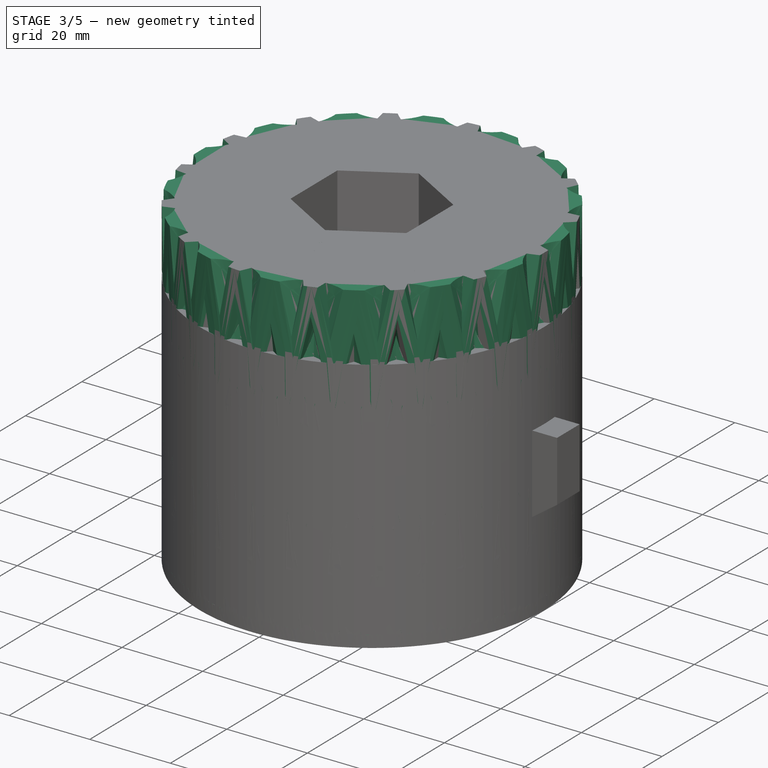
[diagram: stage 3 of 5 — iso view after this stage's code; geometry added in this stage tinted green]
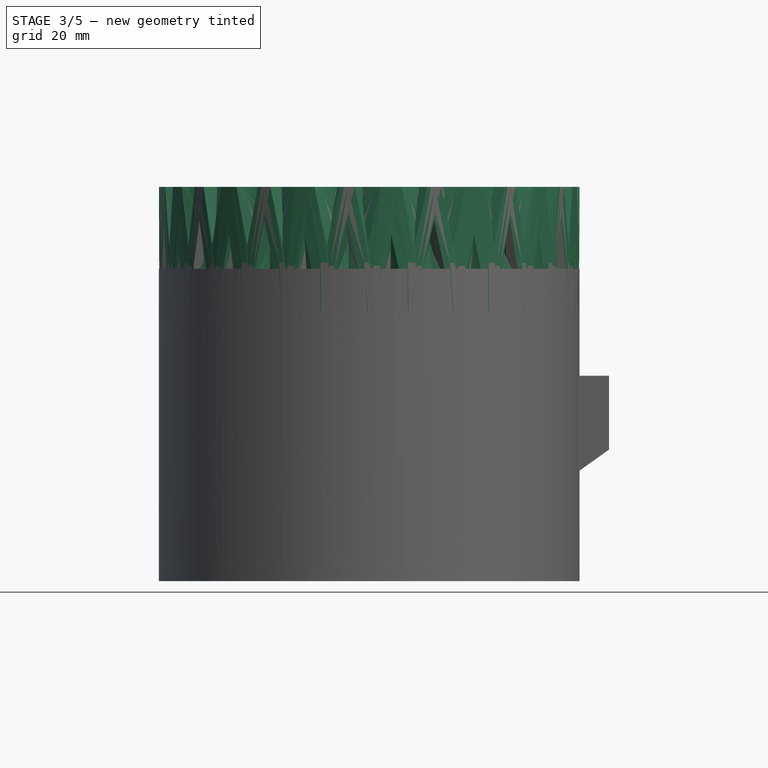
[diagram: stage 3 of 5 — front view after this stage's code; geometry added in this stage tinted green]
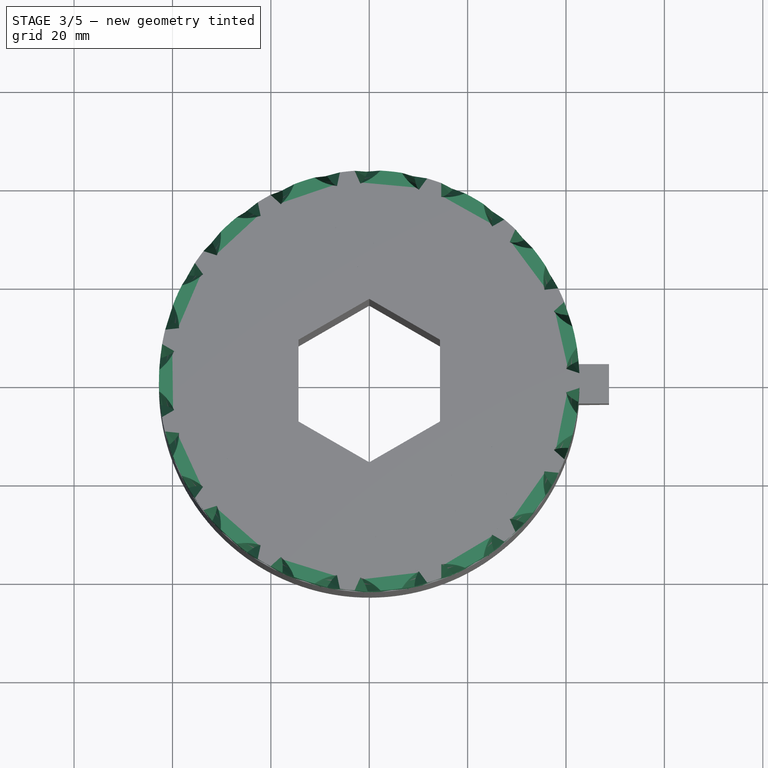
[diagram: stage 3 of 5 — top view after this stage's code; geometry added in this stage tinted green]
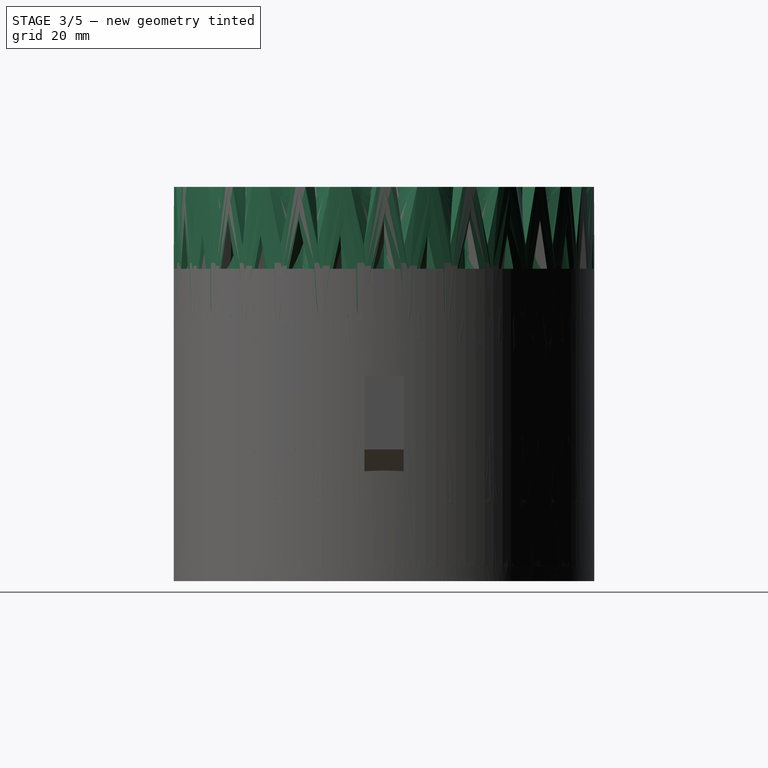
[diagram: stage 3 of 5 — right view after this stage's code; geometry added in this stage tinted green]
FEATURE [App::Point] Origin005
  Role = Origin
FEATURE [Sketcher::SketchObject] Sketch004
  ArcFitTolerance = 1e-06
  AttachmentSupport = -> [XY_Plane002]
  ExternalTypes = [0]
  FullyConstrained = true
  MakeInternals = false
  MapMode = 5
  expr: Constraints[1] = <<Dimensions>>.segment_diameter_tight
  sketch-geometry (1):
    g0: Circle CenterX=0 CenterY=0 CenterZ=0 NormalX=0 NormalY=0 NormalZ=1 AngleXU=0 Radius=42.75
  constraints (2):
    c: Coincident(g0,g-1)
    c: Diameter(g0) = 85.5
FEATURE [Sketcher::SketchObject] Sketch005
  ArcFitTolerance = 1e-06
  AttachmentSupport = -> [XY_Plane002]
  ExternalTypes = [0]
  FullyConstrained = true
  MakeInternals = false
  MapMode = 5
  expr: Constraints[12] = <<ExtraFineParameters>>.scallop_width
  expr: Constraints[2] = <<Dimensions>>.segment_diameter_tight
  expr: Constraints[7] = <<ExtraFineParameters>>.scallop_depth
  sketch-geometry (4):
    g0: Circle CenterX=50.2285 CenterY=0 CenterZ=0 NormalX=0 NormalY=0 NormalZ=1 AngleXU=0 Radius=10.4785
    g1: Circle [constr] CenterX=0 CenterY=0 CenterZ=0 NormalX=0 NormalY=0 NormalZ=1 AngleXU=0 Radius=42.75
    g2: LineSegment [constr] StartX=39.75 StartY=0 StartZ=0 EndX=42.75 EndY=0 EndZ=0
    g3: LineSegment [constr] StartX=42.2137 StartY=6.75 StartZ=0 EndX=42.2137 EndY=-6.75 EndZ=0
  constraints (13):
    c: PointOnObject(g0,g-1)
    c: Coincident(g1,g-1)
    c: Diameter(g1) = 85.5
    c: PointOnObject(g2,g0)
    c: PointOnObject(g2,g1)
    c: Horizontal(g2)
    c: PointOnObject(g2,g-1)
    c: DistanceX(g2,g2) = 3
    c: PointOnObject(g3,g0)
    c: PointOnObject(g3,g0)
    c: Vertical(g3)
    c: PointOnObject(g3,g1)
    c: DistanceY(g3,g3) = 13.5
FEATURE [PartDesign::Pad] Pad005
  Direction = (0,0,1)
  Length = 80.15
  Length2 = 10
  Profile = -> Sketch004
  ReferenceAxis = -> Sketch004 [N_Axis]
  Refine = true
  SideType = 0
  Suppressed = false
  Type = 0
  Type2 = 0
  expr: Length = <<Dimensions>>.segment_width
FEATURE [PartDesign::Pocket] Pocket004
  BaseFeature = -> Pad005
  Direction = (0,0,-1)
  Length = 5
  Length2 = 5
  Profile = -> Sketch005
  ReferenceAxis = -> Sketch005 [N_Axis]
  Refine = true
  Reversed = true
  SideType = 0
  Suppressed = false
  Type = 1
  Type2 = 0
FEATURE [PartDesign::PolarPattern] PolarPattern004
  Angle = 360
  Axis = -> Z_Axis002
  BaseFeature = -> Pocket004
  Mode = 0
  Occurrences = 15
  Offset = 120
  Originals = -> [Pocket004]
  Refine = true
  SpacingPattern = [0]
  Spacings = [-1,-1,-1,-1,-1,-1,-1,-1,-1,-1,-1,-1,-1,-1]
  Suppressed = false
  TransformMode = 0
  expr: Occurrences = <<ExtraFineParameters>>.num_scallops
FEATURE [PartDesign::Body] Body003  label="Coarse Spiral Segment"
  AllowCompound = false
  Group = -> [Binder,AdditiveHelix,Binder003,Pocket006]
  Origin = -> Origin006
  Tip = -> Pocket006
FEATURE [App::VarSet] VarSet005  label="ExtraFineParameters"
  chamfer_angle = 30
  num_scallops = 15
  scallop_depth = 3
  scallop_width = 13.5
  twist_degrees = 24
FEATURE [App::Point] Origin009
  Role = Origin
FEATURE [PartDesign::SubShapeBinder] Binder004
  BindCopyOnChange = 0
  BindMode = 0
  ClaimChildren = false
  Context = -> Body004 [Binder004.]
  Fuse = false
  MakeFace = true
  OffsetFill = false
  OffsetIntersection = false
  OffsetJoinType = 0
  OffsetOpenResult = false
  PartialLoad = false
  Refine = true
  Relative = true
  Support = -> [Body002[PolarPattern004.Face2]]
  _Version = 2
FEATURE [PartDesign::AdditiveHelix] AdditiveHelix001
  Angle = 0
  Axis = (1e-16,1e-16,1)
  Base = (0,0,0)
  Growth = 0
  HasBeenEdited = true
  Height = 80.15
  LeftHanded = true
  Mode = 3
  Outside = false
  Pitch = 1202.25
  Profile = -> Binder004
  ReferenceAxis = -> Z_Axis004
  Refine = true
  Suppressed = false
  Tolerance = 0.1
  Turns = 0.0666667
  expr: Height = <<Dimensions>>.segment_width
  expr: Turns = <<ExtraFineParameters>>.twist_degrees / 360
FEATURE [PartDesign::Body] Body005  label="Extra Fine Fluted Segment"
  AllowCompound = false
  Group = -> [Sketch006,Sketch007,Sketch008,Pad007,Pad008,PolarPattern005,Pocket008]
  Origin = -> Origin010
  Tip = -> Pocket008
FEATURE [App::Point] Origin013
  Role = Origin
FEATURE [PartDesign::SubShapeBinder] Binder006
  BindCopyOnChange = 0
  BindMode = 0
  ClaimChildren = false
  Context = -> Body006 [Binder006.]
  Fuse = false
  MakeFace = true
  OffsetFill = false
  OffsetIntersection = false
  OffsetJoinType = 0
  OffsetOpenResult = false
  PartialLoad = false
  Refine = true
  Relative = true
  Support = -> [Body005[PolarPattern005.Face61]]
  _Version = 2
FEATURE [PartDesign::SubShapeBinder] Binder007
  BindCopyOnChange = 0
  BindMode = 0
  ClaimChildren = false
  Context = -> Body006 [Binder007.]
  Fuse = false
  MakeFace = true
  OffsetFill = false
  OffsetIntersection = false
  OffsetJoinType = 0
  OffsetOpenResult = false
  PartialLoad = false
  Refine = true
  Relative = true
  Support = -> [Body005[Sketch007.]]
  _Version = 2
FEATURE [PartDesign::AdditiveHelix] AdditiveHelix002
  Angle = 0
  Axis = (1e-16,1e-16,1)
  Base = (0,0,0)
  Growth = 0
  HasBeenEdited = true
  Height = 80.15
  LeftHanded = true
  Mode = 2
  Outside = false
  Pitch = 1202.25
  Profile = -> Binder006
  ReferenceAxis = -> Z_Axis006
  Refine = true
  Suppressed = false
  Tolerance = 0.1
  Turns = 0.0666667
  expr: Height = <<Dimensions>>.segment_width
  expr: Turns = <<ExtraFineFlutedParameters>>.twist_degrees / 360
FEATURE [PartDesign::Pocket] Pocket009
  BaseFeature = -> AdditiveHelix002
  Direction = (0,0,-1)
  Length = 5
  Length2 = 5
  Profile = -> Binder007
  Refine = true
  Reversed = true
  SideType = 0
  Suppressed = false
  Type = 1
  Type2 = 0
FEATURE [PartDesign::Body] Body022  label="Extra Coarse Segment"
  AllowCompound = false
  Group = -> [Sketch022,Sketch023,Sketch024,Pad011,Pad012,PolarPattern007,Pocket014]
  Origin = -> Origin044
  Tip = -> Pocket014
FEATURE [App::Point] Origin047
  Role = Origin
FEATURE [PartDesign::SubShapeBinder] Binder012
  BindCopyOnChange = 0
  BindMode = 0
  ClaimChildren = false
  Context = -> Body023 [Binder012.]
  Fuse = false
  MakeFace = true
  OffsetFill = false
  OffsetIntersection = false
  OffsetJoinType = 0
  OffsetOpenResult = false
  PartialLoad = false
  Refine = true
  Relative = true
  Support = -> [Body022[PolarPattern007.Face25]]
  _Version = 2
FEATURE [PartDesign::SubShapeBinder] Binder013
  BindCopyOnChange = 0
  BindMode = 0
  ClaimChildren = false
  Context = -> Body023 [Binder013.]
  Fuse = false
  MakeFace = true
  OffsetFill = false
  OffsetIntersection = false
  OffsetJoinType = 0
  OffsetOpenResult = false
  PartialLoad = false
  Refine = true
  Relative = true
  Support = -> [Body022[Sketch023.]]
  _Version = 2
FEATURE [PartDesign::AdditiveHelix] AdditiveHelix004
  Angle = 0
  Axis = (1e-16,1e-16,1)
  Base = (0,0,0)
  Growth = 0
  HasBeenEdited = true
  Height = 80.15
  LeftHanded = true
  Mode = 2
  Outside = false
  Pitch = 801.5
  Profile = -> Binder012
  ReferenceAxis = -> Z_Axis023
  Refine = true
  Suppressed = false
  Tolerance = 0.1
  Turns = 0.1
  expr: Height = <<Dimensions>>.segment_width
  expr: Turns = <<ExtraCoarseParameters>>.twist_degrees / 360
FEATURE [PartDesign::Pocket] Pocket015
  BaseFeature = -> AdditiveHelix004
  Direction = (0,0,-1)
  Length = 5
  Length2 = 5
  Profile = -> Binder013
  Refine = true
  Reversed = true
  SideType = 0
  Suppressed = false
  Type = 1
  Type2 = 0
FEATURE [PartDesign::Body] Body036  label="Extra Coarse Spiral Divider"
  AllowCompound = false
  Group = -> [Clone023]
  Origin = -> Origin072
  Placement = pos=(0,100,0) rot=(0,0,1;0rad)
  Tip = -> Clone023
FEATURE [App::Point] Origin075
  Role = Origin
FEATURE [Sketcher::SketchObject] Sketch029
  ArcFitTolerance = 1e-06
  AttachmentSupport = -> [XZ_Plane037]
  ExternalTypes = [0]
  FullyConstrained = true
  MakeInternals = false
  MapMode = 5
  Placement = pos=(0,0,0) rot=(1,0,0;1.5708rad)
  expr: Constraints[10] = <<Dimensions>>.segment_diameter_tight / 2
  expr: Constraints[11] = <<Dimensions>>.divider_width
  expr: Constraints[9] = <<Dimensions>>.segment_diameter_tight / 2 - <<ExtraFineParameters>>.scallop_depth
  sketch-geometry (4):
    g0: LineSegment StartX=39.75 StartY=3 StartZ=0 EndX=39.75 EndY=0 EndZ=0
    g1: LineSegment StartX=39.75 StartY=0 StartZ=0 EndX=42.75 EndY=0 EndZ=0
    g2: LineSegment StartX=42.75 StartY=0 StartZ=0 EndX=42.75 EndY=3 EndZ=0
    g3: LineSegment StartX=42.75 StartY=3 StartZ=0 EndX=39.75 EndY=3 EndZ=0
  constraints (12):
    c: Coincident(g0,g1)
    c: Coincident(g1,g2)
    c: Coincident(g2,g3)
    c: Coincident(g3,g0)
    c: Vertical(g0)
    c: Vertical(g2)
    c: Horizontal(g1)
    c: Horizontal(g3)
    c: PointOnObject(g1,g-1)
    c: DistanceX(g-1,g0) = 39.75
    c: DistanceX(g-1,g1) = 42.75
    c: DistanceY(g2,g2) = 3
FEATURE [App::Point] Origin077
  Role = Origin
FEATURE [PartDesign::FeatureBase] Clone025
  BaseFeature = -> Body006
  Suppressed = false
FEATURE [Sketcher::SketchObject] Sketch030
  ArcFitTolerance = 1e-06
  AttachmentSupport = -> [XZ_Plane038]
  ExternalTypes = [0]
  FullyConstrained = true
  MakeInternals = false
  MapMode = 5
  Placement = pos=(0,0,0) rot=(1,0,0;1.5708rad)
  expr: Constraints[10] = <<Dimensions>>.segment_diameter_tight / 2
  expr: Constraints[11] = <<Dimensions>>.divider_width
  expr: Constraints[9] = <<Dimensions>>.segment_diameter_tight / 2 - <<ExtraFineFlutedParameters>>.flute_depth
  sketch-geometry (4):
    g0: LineSegment StartX=39.75 StartY=3 StartZ=0 EndX=39.75 EndY=0 EndZ=0
    g1: LineSegment StartX=39.75 StartY=0 StartZ=0 EndX=42.75 EndY=0 EndZ=0
    g2: LineSegment StartX=42.75 StartY=0 StartZ=0 EndX=42.75 EndY=3 EndZ=0
    g3: LineSegment StartX=42.75 StartY=3 StartZ=0 EndX=39.75 EndY=3 EndZ=0
  constraints (12):
    c: Coincident(g0,g1)
    c: Coincident(g1,g2)
    c: Coincident(g2,g3)
    c: Coincident(g3,g0)
    c: Vertical(g0)
    c: Vertical(g2)
    c: Horizontal(g1)
    c: Horizontal(g3)
    c: PointOnObject(g1,g-1)
    c: DistanceX(g-1,g0) = 39.75
    c: DistanceX(g-1,g1) = 42.75
    c: DistanceY(g2,g2) = 3
FEATURE [PartDesign::Revolution] Revolution009
  Angle = 360
  Angle2 = 60
  Axis = (0,2e-16,1)
  Base = (0,0,0)
  BaseFeature = -> Clone025
  Profile = -> Sketch030
  ReferenceAxis = -> Sketch030 [V_Axis]
  Refine = true
  Reversed = true
  Suppressed = false
  Type = 0
FEATURE [PartDesign::Body] Body038  label="Extra Fine Fluted Spiral Divider Segment"
  AllowCompound = false
  Group = -> [Clone025,Sketch030,Revolution009]
  Origin = -> Origin076
  Tip = -> Revolution009
FEATURE [App::Point] Origin079
  Role = Origin
FEATURE [App::Point] Origin081
  Role = Origin
FEATURE [PartDesign::FeatureBase] Clone027
  BaseFeature = -> Body038
  Suppressed = false
FEATURE [PartDesign::Body] Body040  label="Extra Fine Fluted Spiral Divider"
  AllowCompound = false
  Group = -> [Clone027]
  Origin = -> Origin080
  Placement = pos=(150,-100,0) rot=(0,0,1;0rad)
  Tip = -> Clone027
FEATURE [Sketcher::SketchObject] Sketch031
  ArcFitTolerance = 1e-06
  AttachmentSupport = -> [XY_Plane002]
  ExternalTypes = [0]
  FullyConstrained = true
  MakeInternals = false
  MapMode = 5
  expr: Constraints[19] = <<Dimensions>>.hex_width + <<Dimensions>>.hex_tolerance
  sketch-geometry (7):
    g0: LineSegment StartX=14.3875 StartY=8.30663 StartZ=0 EndX=-3.8938e-12 EndY=16.6133 EndZ=0
    g1: LineSegment StartX=-3.8938e-12 StartY=16.6133 StartZ=0 EndX=-14.3875 EndY=8.30663 EndZ=0
    g2: LineSegment StartX=-14.3875 StartY=8.30663 StartZ=0 EndX=-14.3875 EndY=-8.30663 EndZ=0
    g3: LineSegment StartX=-14.3875 StartY=-8.30663 StartZ=0 EndX=-3.8902e-12 EndY=-16.6133 EndZ=0
    g4: LineSegment StartX=-3.8902e-12 StartY=-16.6133 StartZ=0 EndX=14.3875 EndY=-8.30663 EndZ=0
    g5: LineSegment StartX=14.3875 StartY=-8.30663 StartZ=0 EndX=14.3875 EndY=8.30663 EndZ=0
    g6: Circle [constr] CenterX=0 CenterY=0 CenterZ=0 NormalX=0 NormalY=0 NormalZ=1 AngleXU=0 Radius=16.6133
  constraints (16):
    c: Coincident(g0,g1)
    c: Coincident(g1,g2)
    c: Coincident(g2,g3)
    c: Coincident(g3,g4)
    c: Coincident(g4,g5)
    c: Coincident(g5,g0)
    c: Equal(g0, g1-g5) x5
    c: PointOnObject(g0,g6)
    c: PointOnObject(g1,g6)
    c: PointOnObject(g2,g6)
    c: PointOnObject(g3,g6)
    c: PointOnObject(g4,g6)
    c: PointOnObject(g5,g6)
    c: Coincident(g6,g-1)
    c: Vertical(g2)
    c: DistanceX(g2,g4) = 28.775
FEATURE [PartDesign::Pocket] Pocket016
  BaseFeature = -> PolarPattern004
  Direction = (0,0,-1)
  Length = 5
  Length2 = 5
  Profile = -> Sketch031
  ReferenceAxis = -> Sketch031 [N_Axis]
  Refine = true
  Reversed = true
  SideType = 0
  Suppressed = false
  Type = 1
  Type2 = 0
FEATURE [PartDesign::Body] Body010  label="Extra Fine"
  AllowCompound = false
  Group = -> [Clone001]
  Origin = -> Origin020
  Placement = pos=(-150,0,0) rot=(0,0,1;0rad)
  Tip = -> Clone001
FEATURE [PartDesign::SubShapeBinder] Binder014
  BindCopyOnChange = 0
  BindMode = 0
  ClaimChildren = false
  Context = -> Body004 [Binder014.]
  Fuse = false
  MakeFace = true
  OffsetFill = false
  OffsetIntersection = false
  OffsetJoinType = 0
  OffsetOpenResult = false
  PartialLoad = false
  Refine = true
  Relative = true
  Support = -> [Body002[Sketch031.]]
  _Version = 2
FEATURE [PartDesign::Pocket] Pocket017
  BaseFeature = -> AdditiveHelix001
  Direction = (0,0,-1)
  Length = 5
  Length2 = 5
  Profile = -> Binder014
  Refine = true
  Reversed = true
  SideType = 0
  Suppressed = false
  Type = 1
  Type2 = 0
FEATURE [PartDesign::Body] Body016  label="Canola Test 1"
  AllowCompound = false
  Group = -> [Clone006]
  Origin = -> Origin032
  Placement = pos=(-50,-100,0) rot=(0,0,1;0rad)
  Tip = -> Clone006
FEATURE [PartDesign::FeatureBase] Clone024
  BaseFeature = -> Body004
  Suppressed = false
FEATURE [PartDesign::Revolution] Revolution008
  Angle = 360
  Angle2 = 60
  Axis = (0,2e-16,1)
  Base = (0,0,0)
  BaseFeature = -> Clone024
  Profile = -> Sketch029
  ReferenceAxis = -> Sketch029 [V_Axis]
  Refine = true
  Reversed = true
  Suppressed = false
  Type = 0
FEATURE [PartDesign::Body] Body037  label="Extra Fine Spiral Divider Segment"
  AllowCompound = false
  Group = -> [Clone024,Sketch029,Revolution008]
  Origin = -> Origin074
  Tip = -> Revolution008
FEATURE [PartDesign::FeatureBase] Clone026
  BaseFeature = -> Body037
  Suppressed = false
FEATURE [PartDesign::Body] Body039  label="Extra Fine Spiral Divider"
  AllowCompound = false
  Group = -> [Clone026]
  Origin = -> Origin078
  Placement = pos=(-150,-100,0) rot=(0,0,1;0rad)
  Tip = -> Clone026
FEATURE [App::Point] Origin083
  Role = Origin
FEATURE [PartDesign::SubShapeBinder] Binder017
  BindCopyOnChange = 0
  BindMode = 0
  ClaimChildren = false
  Context = -> Body041 [Binder017.]
  Fuse = false
  MakeFace = true
  OffsetFill = false
  OffsetIntersection = false
  OffsetJoinType = 0
  OffsetOpenResult = false
  PartialLoad = false
  Refine = true
  Relative = true
  Support = -> [Body002[PolarPattern004.Face2]]
  _Version = 2
FEATURE [PartDesign::AdditiveHelix] AdditiveHelix005
  Angle = 0
  Axis = (1e-16,1e-16,1)
  Base = (0,0,0)
  Growth = 0
  HasBeenEdited = true
  Height = 80.15
  LeftHanded = false
  Mode = 2
  Outside = false
  Pitch = 1202.25
  Profile = -> Binder017
  ReferenceAxis = -> Z_Axis041
  Refine = true
  Suppressed = false
  Tolerance = 0.1
  Turns = 0.0666667
  expr: Height = <<Dimensions>>.segment_width
  expr: Turns = <<ExtraFineParameters>>.twist_degrees / 360
FEATURE [PartDesign::SubShapeBinder] Binder018
  BindCopyOnChange = 0
  BindMode = 0
  ClaimChildren = false
  Context = -> Body041 [Binder018.]
  Fuse = false
  MakeFace = true
  OffsetFill = false
  OffsetIntersection = false
  OffsetJoinType = 0
  OffsetOpenResult = false
  PartialLoad = false
  Refine = true
  Relative = true
  Support = -> [Body002[Sketch031.]]
  _Version = 2
FEATURE [PartDesign::Pocket] Pocket018
  BaseFeature = -> AdditiveHelix005
  Direction = (0,0,-1)
  Length = 5
  Length2 = 5
  Profile = -> Binder018
  Refine = true
  Reversed = true
  SideType = 0
  Suppressed = false
  Type = 1
  Type2 = 0
FEATURE [PartDesign::Body] Body041  label="Extra Fine Right-Hand Spiral Segment"
  AllowCompound = false
  Group = -> [Binder017,AdditiveHelix005,Binder018,Pocket018]
  Origin = -> Origin082
  Tip = -> Pocket018
FEATURE [App::Point] Origin085
  Role = Origin
FEATURE [PartDesign::SubShapeBinder] Binder019
  BindCopyOnChange = 0
  BindMode = 0
  ClaimChildren = false
  Context = -> Body042 [Binder019.]
  Fuse = false
  MakeFace = true
  OffsetFill = false
  OffsetIntersection = false
  OffsetJoinType = 0
  OffsetOpenResult = false
  PartialLoad = false
  Refine = true
  Relative = true
  Support = -> [Body005[PolarPattern005.Face61]]
  _Version = 2
FEATURE [PartDesign::SubShapeBinder] Binder020
  BindCopyOnChange = 0
  BindMode = 0
  ClaimChildren = false
  Context = -> Body042 [Binder020.]
  Fuse = false
  MakeFace = true
  OffsetFill = false
  OffsetIntersection = false
  OffsetJoinType = 0
  OffsetOpenResult = false
  PartialLoad = false
  Refine = true
  Relative = true
  Support = -> [Body005[Sketch007.]]
  _Version = 2
FEATURE [PartDesign::AdditiveHelix] AdditiveHelix006
  Angle = 0
  Axis = (1e-16,1e-16,1)
  Base = (0,0,0)
  Growth = 0
  HasBeenEdited = true
  Height = 80.15
  LeftHanded = false
  Mode = 2
  Outside = false
  Pitch = 1202.25
  Profile = -> Binder019
  ReferenceAxis = -> Z_Axis042
  Refine = true
  Suppressed = false
  Tolerance = 0.1
  Turns = 0.0666667
  expr: Height = <<Dimensions>>.segment_width
  expr: Turns = <<ExtraFineFlutedParameters>>.twist_degrees / 360
FEATURE [PartDesign::Pocket] Pocket019
  BaseFeature = -> AdditiveHelix006
  Direction = (0,0,-1)
  Length = 5
  Length2 = 5
  Profile = -> Binder020
  Refine = true
  Reversed = true
  SideType = 0
  Suppressed = false
  Type = 1
  Type2 = 0
FEATURE [PartDesign::Body] Body045  label="Extra Coarse Right-Hand Spiral Segment"
  AllowCompound = false
  Group = -> [Binder025,Binder026,AdditiveHelix009,Pocket022]
  Origin = -> Origin090
  Tip = -> Pocket022
FEATURE [App::DocumentObjectGroup] Group001  label="All Segments (base objects, do not transform)"
  Group = -> [Body002,Body004,Body041,Body037,Body005,Body006,Body042,Body038,Body007,Body008,Body043,Body033,Body,Body003,Body044,Body029,Body022,Body023,Body045,Body032,Body015,Body017]
FEATURE [App::Point] Origin093
  Role = Origin
FEATURE [PartDesign::FeatureBase] Clone028
  BaseFeature = -> Body041
  Suppressed = false
FEATURE [PartDesign::Body] Body046  label="Extra Fine Right-Hand Spiral"
  AllowCompound = false
  Group = -> [Clone028]
  Origin = -> Origin092
  Placement = pos=(-50,100,0) rot=(0,0,1;0rad)
  Tip = -> Clone028
FEATURE [App::Point] Origin095
  Role = Origin
FEATURE [PartDesign::FeatureBase] Clone029
  BaseFeature = -> Body042
  Suppressed = false
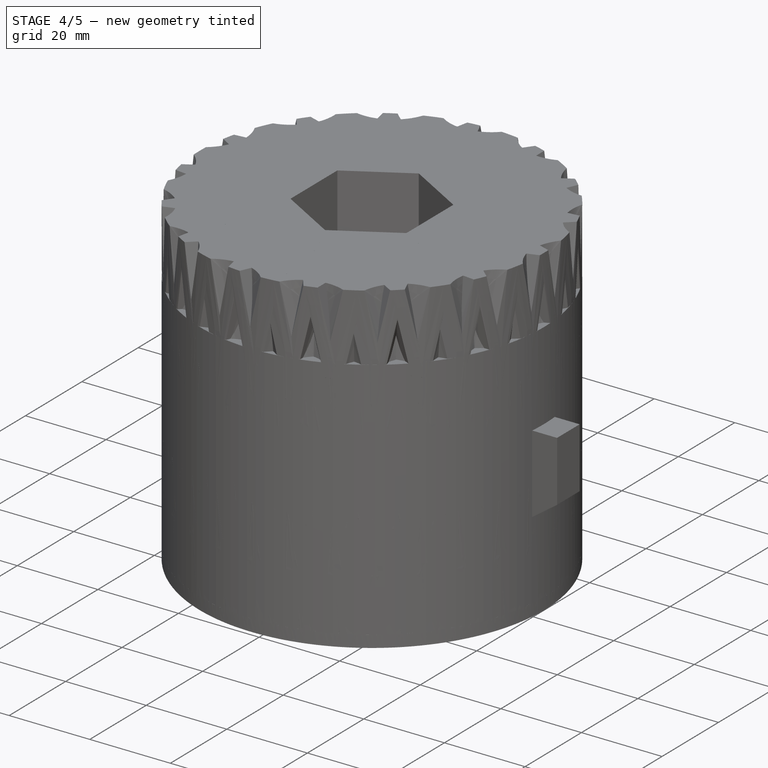
[diagram: stage 4 of 5 — iso view after this stage's code; geometry added in this stage tinted green]
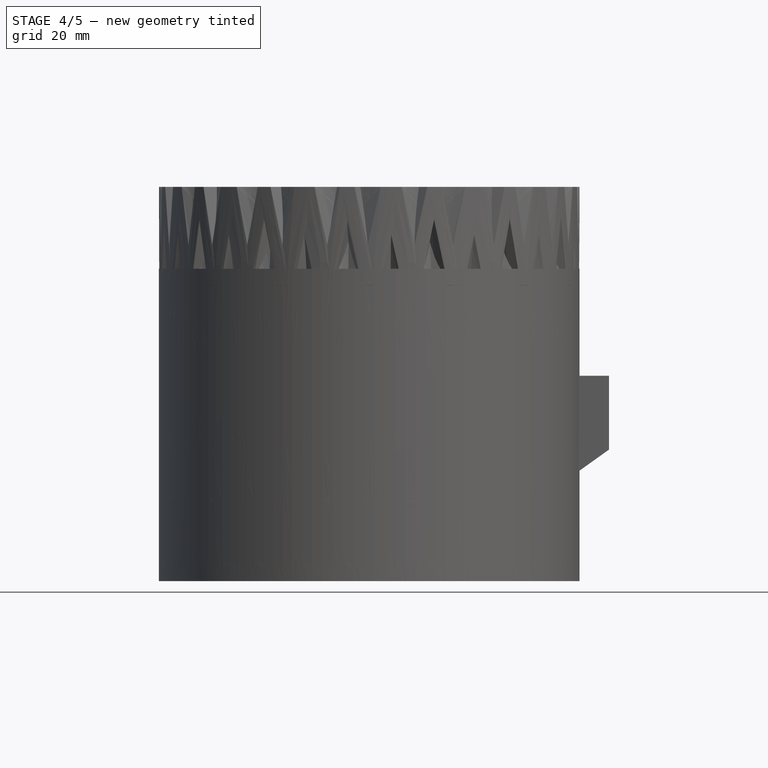
[diagram: stage 4 of 5 — front view after this stage's code; geometry added in this stage tinted green]
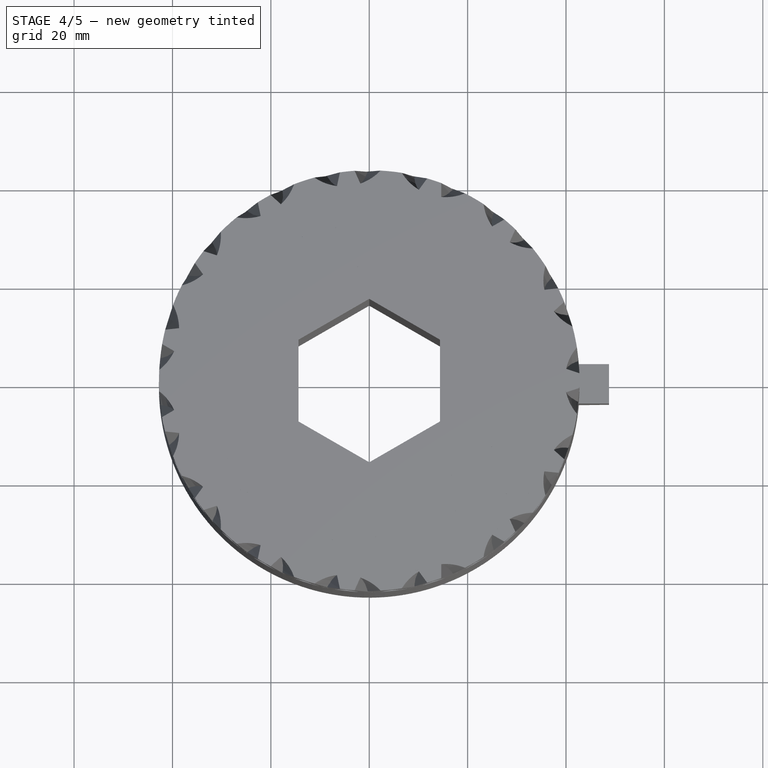
[diagram: stage 4 of 5 — top view after this stage's code; geometry added in this stage tinted green]
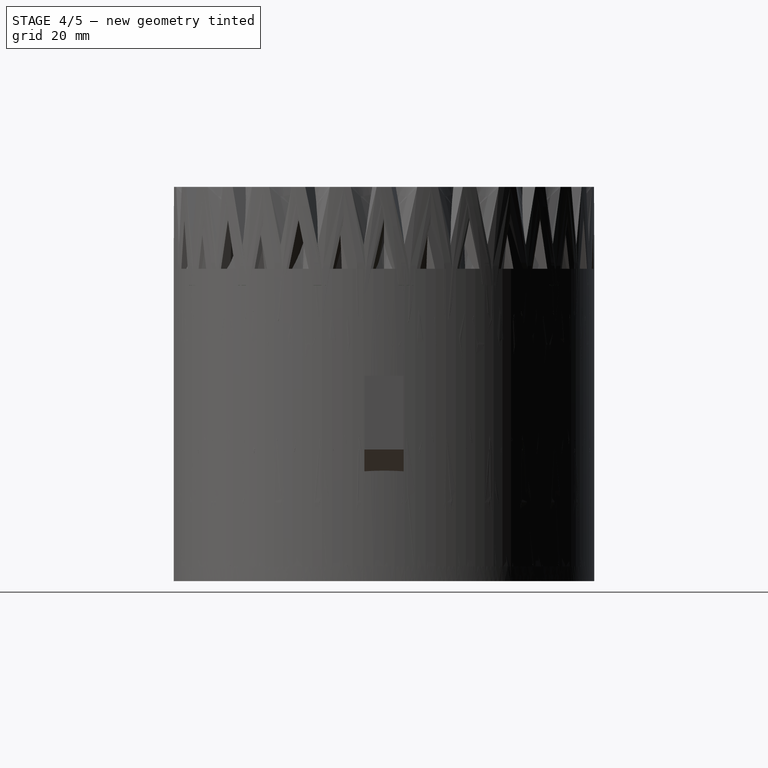
[diagram: stage 4 of 5 — right view after this stage's code; geometry added in this stage tinted green]
FEATURE [PartDesign::Body] Body  label="Coarse Segment"
  AllowCompound = false
  Group = -> [Sketch,Sketch001,Sketch002,Pad001,Pad006,PolarPattern,Pocket]
  Origin = -> Origin
  Tip = -> Pocket
FEATURE [App::VarSet] VarSet  label="ExtraFineFlutedParameters"
  chamfer_angle = 30
  flute_depth = 3
  num_flutes = 15
  root_width = 5
  tip_width = 3
  twist_degrees = 24
  expr: twist_degrees = 360 / num_flutes
FEATURE [App::VarSet] VarSet003  label="Dimensions"
  bearing_inner = 50
  bearing_outer = 80
  bearing_tolerance = 0.1
  divider_width = 3
  hex_tolerance = 0.2
  hex_width = 28.575
  segment_diameter = 79.5
  segment_diameter_tight = 85.5
  segment_width = 80.15
FEATURE [App::VarSet] VarSet004  label="CoarseParameters"
  inner_diameter = 51
  num_flutes = 10
  root_width = 9
  tip_width = 3
  twist_degrees = 36
FEATURE [App::Point] Origin007
  Role = Origin
FEATURE [PartDesign::SubShapeBinder] Binder
  BindCopyOnChange = 0
  BindMode = 0
  ClaimChildren = false
  Context = -> Body003 [Binder.]
  Fuse = false
  MakeFace = true
  OffsetFill = false
  OffsetIntersection = false
  OffsetJoinType = 0
  OffsetOpenResult = false
  PartialLoad = false
  Refine = true
  Relative = true
  Support = -> [Body[PolarPattern.Face41]]
  _Version = 2
FEATURE [PartDesign::AdditiveHelix] AdditiveHelix
  Angle = 0
  Axis = (1e-16,1e-16,1)
  Base = (0,0,0)
  Growth = 0
  HasBeenEdited = true
  Height = 80.15
  LeftHanded = true
  Mode = 2
  Outside = false
  Pitch = 801.5
  Profile = -> Binder
  ReferenceAxis = -> Z_Axis003
  Refine = true
  Suppressed = false
  Tolerance = 0.1
  Turns = 0.1
  expr: Height = <<Dimensions>>.segment_width
  expr: Turns = <<CoarseParameters>>.twist_degrees / 360
FEATURE [PartDesign::SubShapeBinder] Binder003
  BindCopyOnChange = 0
  BindMode = 0
  ClaimChildren = false
  Context = -> Body003 [Binder003.]
  Fuse = false
  MakeFace = true
  OffsetFill = false
  OffsetIntersection = false
  OffsetJoinType = 0
  OffsetOpenResult = false
  PartialLoad = false
  Refine = true
  Relative = true
  Support = -> [Body[Sketch001.]]
  _Version = 2
FEATURE [PartDesign::Pocket] Pocket006
  BaseFeature = -> AdditiveHelix
  Direction = (0,0,-1)
  Length = 5
  Length2 = 5
  Profile = -> Binder003
  Refine = true
  Reversed = true
  SideType = 0
  Suppressed = false
  Type = 1
  Type2 = 0
FEATURE [PartDesign::Body] Body007  label="Fine Segment"
  AllowCompound = false
  Group = -> [Sketch009,Sketch010,Sketch011,Pad009,Pad010,PolarPattern006,Pocket010]
  Origin = -> Origin014
  Tip = -> Pocket010
FEATURE [App::VarSet] VarSet008  label="FineParameters"
  inner_diameter = 63.5
  num_flutes = 10
  root_width = 8
  tip_width = 6
  twist_degrees = 36
  expr: twist_degrees = 360 / num_flutes
FEATURE [App::Point] Origin017
  Role = Origin
FEATURE [PartDesign::SubShapeBinder] Binder008
  BindCopyOnChange = 0
  BindMode = 0
  ClaimChildren = false
  Context = -> Body008 [Binder008.]
  Fuse = false
  MakeFace = true
  OffsetFill = false
  OffsetIntersection = false
  OffsetJoinType = 0
  OffsetOpenResult = false
  PartialLoad = false
  Refine = true
  Relative = true
  Support = -> [Body007[PolarPattern006.Face41]]
  _Version = 2
FEATURE [PartDesign::SubShapeBinder] Binder009
  BindCopyOnChange = 0
  BindMode = 0
  ClaimChildren = false
  Context = -> Body008 [Binder009.]
  Fuse = false
  MakeFace = true
  OffsetFill = false
  OffsetIntersection = false
  OffsetJoinType = 0
  OffsetOpenResult = false
  PartialLoad = false
  Refine = true
  Relative = true
  Support = -> [Body007[Sketch010.]]
  _Version = 2
FEATURE [PartDesign::AdditiveHelix] AdditiveHelix003
  Angle = 0
  Axis = (1e-16,1e-16,1)
  Base = (0,0,0)
  Growth = 0
  HasBeenEdited = true
  Height = 80.15
  LeftHanded = true
  Mode = 2
  Outside = false
  Pitch = 801.5
  Profile = -> Binder008
  ReferenceAxis = -> Z_Axis008
  Refine = true
  Suppressed = false
  Tolerance = 0.1
  Turns = 0.1
  expr: Height = <<Dimensions>>.segment_width
  expr: Pitch = <<Dimensions>>.segment_width
  expr: Turns = <<FineParameters>>.twist_degrees / 360
FEATURE [PartDesign::Pocket] Pocket011
  BaseFeature = -> AdditiveHelix003
  Direction = (0,0,-1)
  Length = 5
  Length2 = 5
  Profile = -> Binder009
  Refine = true
  Reversed = true
  SideType = 0
  Suppressed = false
  Type = 1
  Type2 = 0
FEATURE [App::Point] Origin041
  Role = Origin
FEATURE [PartDesign::FeatureBase] Clone009
  BaseFeature = -> Body006
  Suppressed = false
FEATURE [Sketcher::SketchObject] Sketch020
  ArcFitTolerance = 1e-06
  AttachmentSupport = -> [XZ_Plane020]
  ExternalTypes = [0]
  FullyConstrained = true
  MakeInternals = false
  MapMode = 5
  Placement = pos=(0,0,0) rot=(1,0,0;1.5708rad)
  expr: Constraints[10] = <<Dimensions>>.segment_diameter_tight / 2 - <<ExtraFineFlutedParameters>>.flute_depth
  expr: Constraints[11] = <<Dimensions>>.segment_diameter_tight / 2
  expr: Constraints[12] = <<ExtraFineFlutedParameters>>.chamfer_angle
  expr: Constraints[13] = <<Dimensions>>.segment_width / 4 * 3
  sketch-geometry (5):
    g0: LineSegment StartX=0 StartY=58.3804 StartZ=0 EndX=39.75 EndY=58.3804 EndZ=0
    g1: LineSegment StartX=39.75 StartY=58.3804 StartZ=0 EndX=42.75 EndY=60.1125 EndZ=0
    g2: LineSegment StartX=42.75 StartY=60.1125 StartZ=0 EndX=42.75 EndY=0 EndZ=0
    g3: LineSegment StartX=42.75 StartY=0 StartZ=0 EndX=0 EndY=0 EndZ=0
    g4: LineSegment StartX=0 StartY=0 StartZ=0 EndX=0 EndY=58.3804 EndZ=0
  constraints (14):
    c: PointOnObject(g0,g-2)
    c: Horizontal(g0)
    c: Coincident(g1,g0)
    c: Coincident(g2,g1)
    c: PointOnObject(g2,g-1)
    c: Vertical(g2)
    c: Coincident(g3,g2)
    c: Coincident(g3,g-1)
    c: Coincident(g4,g3)
    c: Coincident(g4,g0)
    c: DistanceX(g0,g0) = 39.75
    c: DistanceX(g3,g3) = 42.75
    c: Angle(g0,g1) = 0.523599
    c: DistanceY(g3,g1) = 60.1125
FEATURE [PartDesign::Groove] Groove003
  Angle = 360
  Angle2 = 60
  Axis = (0,2e-16,1)
  Base = (0,0,0)
  BaseFeature = -> Clone009
  Profile = -> Sketch020
  ReferenceAxis = -> Sketch020 [V_Axis]
  Refine = true
  Suppressed = false
  Type = 0
FEATURE [PartDesign::Body] Body023  label="Extra Coarse Spiral Segment"
  AllowCompound = false
  Group = -> [Binder012,Binder013,AdditiveHelix004,Pocket015]
  Origin = -> Origin046
  Tip = -> Pocket015
FEATURE [App::Point] Origin049
  Role = Origin
FEATURE [PartDesign::FeatureBase] Clone011
  BaseFeature = -> Body007
  Suppressed = false
FEATURE [PartDesign::Body] Body024  label="Fine"
  AllowCompound = false
  Group = -> [Clone011]
  Origin = -> Origin048
  Placement = pos=(0,-100,0) rot=(0,0,1;0rad)
  Tip = -> Clone011
FEATURE [App::Point] Origin051
  Role = Origin
FEATURE [PartDesign::FeatureBase] Clone012
  BaseFeature = -> Body008
  Suppressed = false
FEATURE [PartDesign::Body] Body025  label="Fine Spiral"
  AllowCompound = false
  Group = -> [Clone012]
  Origin = -> Origin050
  Placement = pos=(50,0,0) rot=(0,0,1;0rad)
  Tip = -> Clone012
FEATURE [App::Point] Origin055
  Role = Origin
FEATURE [PartDesign::FeatureBase] Clone014
  BaseFeature = -> Body
  Suppressed = false
FEATURE [PartDesign::Body] Body027  label="Coarse"
  AllowCompound = false
  Group = -> [Clone014]
  Origin = -> Origin054
  Placement = pos=(0,-100,0) rot=(0,0,1;0rad)
  Tip = -> Clone014
FEATURE [App::Point] Origin057
  Role = Origin
FEATURE [PartDesign::FeatureBase] Clone015
  BaseFeature = -> Body003
  Suppressed = false
FEATURE [PartDesign::Body] Body028  label="Coarse Spiral"
  AllowCompound = false
  Group = -> [Clone015]
  Origin = -> Origin056
  Placement = pos=(50,0,0) rot=(0,0,1;0rad)
  Tip = -> Clone015
FEATURE [App::Point] Origin059
  Role = Origin
FEATURE [PartDesign::FeatureBase] Clone016
  BaseFeature = -> Body003
  Suppressed = false
FEATURE [Sketcher::SketchObject] Sketch026
  ArcFitTolerance = 1e-06
  AttachmentSupport = -> [YZ_Plane029]
  ExternalTypes = [0]
  FullyConstrained = true
  MakeInternals = false
  MapMode = 5
  Placement = pos=(0,0,0) rot=(0.57735,0.57735,0.57735;2.0944rad)
  expr: Constraints[10] = <<Dimensions>>.segment_diameter / 2
  expr: Constraints[11] = <<CoarseParameters>>.inner_diameter / 2
  expr: Constraints[9] = <<Dimensions>>.divider_width
  sketch-geometry (4):
    g0: LineSegment StartX=25.5 StartY=0 StartZ=0 EndX=39.75 EndY=0 EndZ=0
    g1: LineSegment StartX=39.75 StartY=0 StartZ=0 EndX=39.75 EndY=3 EndZ=0
    g2: LineSegment StartX=39.75 StartY=3 StartZ=0 EndX=25.5 EndY=3 EndZ=0
    g3: LineSegment StartX=25.5 StartY=3 StartZ=0 EndX=25.5 EndY=0 EndZ=0
  constraints (12):
    c: Coincident(g0,g1)
    c: Coincident(g1,g2)
    c: Coincident(g2,g3)
    c: Coincident(g3,g0)
    c: Horizontal(g0)
    c: Horizontal(g2)
    c: Vertical(g1)
    c: Vertical(g3)
    c: PointOnObject(g0,g-1)
    c: DistanceY(g1,g1) = 3
    c: DistanceX(g-1,g0) = 39.75
    c: DistanceX(g-1,g0) = 25.5
FEATURE [PartDesign::Revolution] Revolution005
  Angle = 360
  Angle2 = 60
  Axis = (0,0,1)
  Base = (0,0,0)
  BaseFeature = -> Clone016
  Profile = -> Sketch026
  ReferenceAxis = -> Sketch026 [V_Axis]
  Refine = true
  Reversed = true
  Suppressed = false
  Type = 0
FEATURE [PartDesign::Body] Body029  label="Coarse Spiral Divider Segment"
  AllowCompound = false
  Group = -> [Clone016,Sketch026,Revolution005]
  Origin = -> Origin058
  Tip = -> Revolution005
FEATURE [App::Point] Origin061
  Role = Origin
FEATURE [PartDesign::FeatureBase] Clone017
  BaseFeature = -> Body022
  Suppressed = false
FEATURE [PartDesign::Body] Body030  label="Extra Coarse"
  AllowCompound = false
  Group = -> [Clone017]
  Origin = -> Origin060
  Placement = pos=(0,-100,0) rot=(0,0,1;0rad)
  Tip = -> Clone017
FEATURE [App::Point] Origin063
  Role = Origin
FEATURE [PartDesign::FeatureBase] Clone018
  BaseFeature = -> Body023
  Suppressed = false
FEATURE [PartDesign::Body] Body031  label="Extra Coarse Spiral"
  AllowCompound = false
  Group = -> [Clone018]
  Origin = -> Origin062
  Placement = pos=(50,0,0) rot=(0,0,1;0rad)
  Tip = -> Clone018
FEATURE [App::Point] Origin065
  Role = Origin
FEATURE [PartDesign::FeatureBase] Clone019
  BaseFeature = -> Body023
  Suppressed = false
FEATURE [Sketcher::SketchObject] Sketch027
  ArcFitTolerance = 1e-06
  AttachmentSupport = -> [YZ_Plane032]
  ExternalTypes = [0]
  FullyConstrained = true
  MakeInternals = false
  MapMode = 5
  Placement = pos=(0,0,0) rot=(0.57735,0.57735,0.57735;2.0944rad)
  expr: Constraints[10] = <<Dimensions>>.segment_diameter / 2
  expr: Constraints[11] = <<Dimensions>>.divider_width
  expr: Constraints[9] = <<ExtraCoarseParameters>>.inner_diameter / 2
  sketch-geometry (4):
    g0: LineSegment StartX=22 StartY=0 StartZ=0 EndX=39.75 EndY=0 EndZ=0
    g1: LineSegment StartX=39.75 StartY=0 StartZ=0 EndX=39.75 EndY=3 EndZ=0
    g2: LineSegment StartX=39.75 StartY=3 StartZ=0 EndX=22 EndY=3 EndZ=0
    g3: LineSegment StartX=22 StartY=3 StartZ=0 EndX=22 EndY=0 EndZ=0
  constraints (12):
    c: Coincident(g0,g1)
    c: Coincident(g1,g2)
    c: Coincident(g2,g3)
    c: Coincident(g3,g0)
    c: Horizontal(g0)
    c: Horizontal(g2)
    c: Vertical(g1)
    c: Vertical(g3)
    c: PointOnObject(g0,g-1)
    c: DistanceX(g-1,g0) = 22
    c: DistanceX(g-1,g0) = 39.75
    c: DistanceY(g1,g1) = 3
FEATURE [PartDesign::Revolution] Revolution006
  Angle = 360
  Angle2 = 60
  Axis = (0,0,1)
  Base = (0,0,0)
  BaseFeature = -> Clone019
  Profile = -> Sketch027
  ReferenceAxis = -> Sketch027 [V_Axis]
  Refine = true
  Reversed = true
  Suppressed = false
  Type = 0
FEATURE [PartDesign::Body] Body032  label="Extra Coarse Spiral Divider Segment"
  AllowCompound = false
  Group = -> [Clone019,Sketch027,Revolution006]
  Origin = -> Origin064
  Tip = -> Revolution006
FEATURE [App::Point] Origin067
  Role = Origin
FEATURE [PartDesign::FeatureBase] Clone020
  BaseFeature = -> Body008
  Suppressed = false
FEATURE [Sketcher::SketchObject] Sketch028
  ArcFitTolerance = 1e-06
  AttachmentSupport = -> [XZ_Plane033]
  ExternalTypes = [0]
  FullyConstrained = true
  MakeInternals = false
  MapMode = 5
  Placement = pos=(0,0,0) rot=(1,0,0;1.5708rad)
  expr: Constraints[10] = <<Dimensions>>.segment_diameter / 2
  expr: Constraints[11] = <<Dimensions>>.divider_width
  expr: Constraints[9] = <<FineParameters>>.inner_diameter / 2
  sketch-geometry (4):
    g0: LineSegment StartX=31.75 StartY=0 StartZ=0 EndX=39.75 EndY=0 EndZ=0
    g1: LineSegment StartX=39.75 StartY=0 StartZ=0 EndX=39.75 EndY=3 EndZ=0
    g2: LineSegment StartX=39.75 StartY=3 StartZ=0 EndX=31.75 EndY=3 EndZ=0
    g3: LineSegment StartX=31.75 StartY=3 StartZ=0 EndX=31.75 EndY=0 EndZ=0
  constraints (12):
    c: Coincident(g0,g1)
    c: Coincident(g1,g2)
    c: Coincident(g2,g3)
    c: Coincident(g3,g0)
    c: Horizontal(g0)
    c: Horizontal(g2)
    c: Vertical(g1)
    c: Vertical(g3)
    c: PointOnObject(g0,g-1)
    c: DistanceX(g-1,g0) = 31.75
    c: DistanceX(g-1,g0) = 39.75
    c: DistanceY(g1,g1) = 3
FEATURE [PartDesign::Revolution] Revolution007
  Angle = 360
  Angle2 = 60
  Axis = (0,2e-16,1)
  Base = (0,0,0)
  BaseFeature = -> Clone020
  Profile = -> Sketch028
  ReferenceAxis = -> Sketch028 [V_Axis]
  Refine = true
  Reversed = true
  Suppressed = false
  Type = 0
FEATURE [PartDesign::Body] Body033  label="Fine Spiral Divider Segment"
  AllowCompound = false
  Group = -> [Clone020,Sketch028,Revolution007]
  Origin = -> Origin066
  Tip = -> Revolution007
FEATURE [App::Point] Origin069
  Role = Origin
FEATURE [PartDesign::FeatureBase] Clone021
  BaseFeature = -> Body033
  Suppressed = false
FEATURE [PartDesign::Body] Body034  label="Fine Divider Spiral"
  AllowCompound = false
  Group = -> [Clone021]
  Origin = -> Origin068
  Placement = pos=(0,100,0) rot=(0,0,1;0rad)
  Tip = -> Clone021
FEATURE [App::Point] Origin071
  Role = Origin
FEATURE [PartDesign::FeatureBase] Clone022
  BaseFeature = -> Body029
  Suppressed = false
FEATURE [PartDesign::Body] Body035  label="Coarse Spiral Divider"
  AllowCompound = false
  Group = -> [Clone022]
  Origin = -> Origin070
  Placement = pos=(0,100,0) rot=(0,0,1;0rad)
  Tip = -> Clone022
FEATURE [App::Point] Origin073
  Role = Origin
FEATURE [PartDesign::FeatureBase] Clone023
  BaseFeature = -> Body032
  Suppressed = false
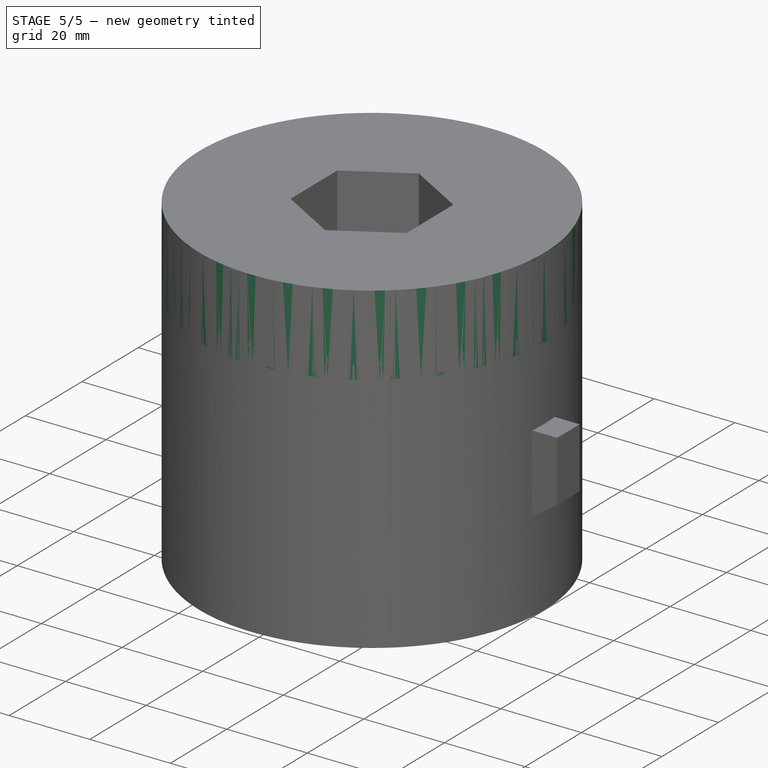
[diagram: stage 5 of 5 — iso view after this stage's code; geometry added in this stage tinted green]
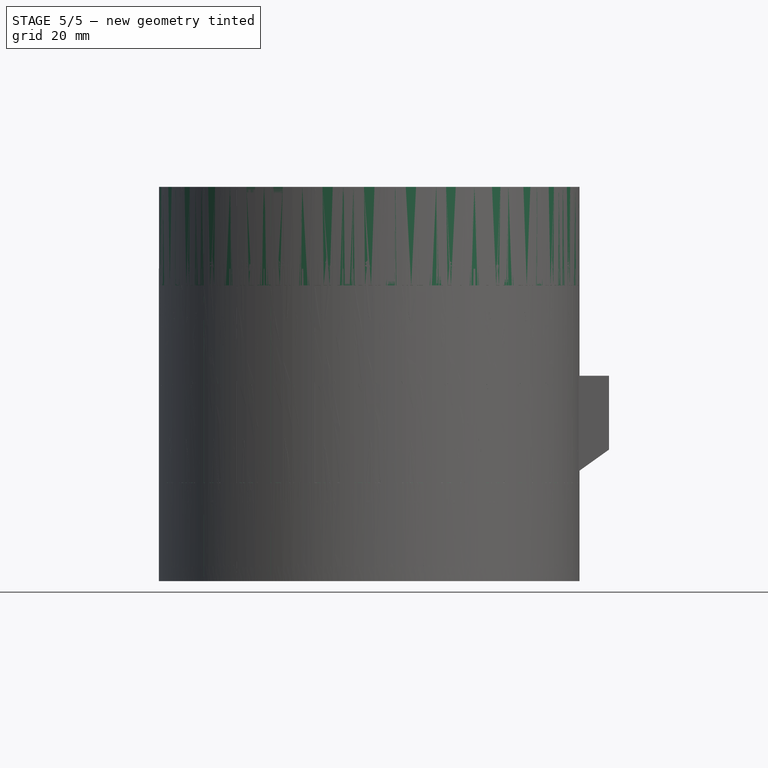
[diagram: stage 5 of 5 — front view after this stage's code; geometry added in this stage tinted green]
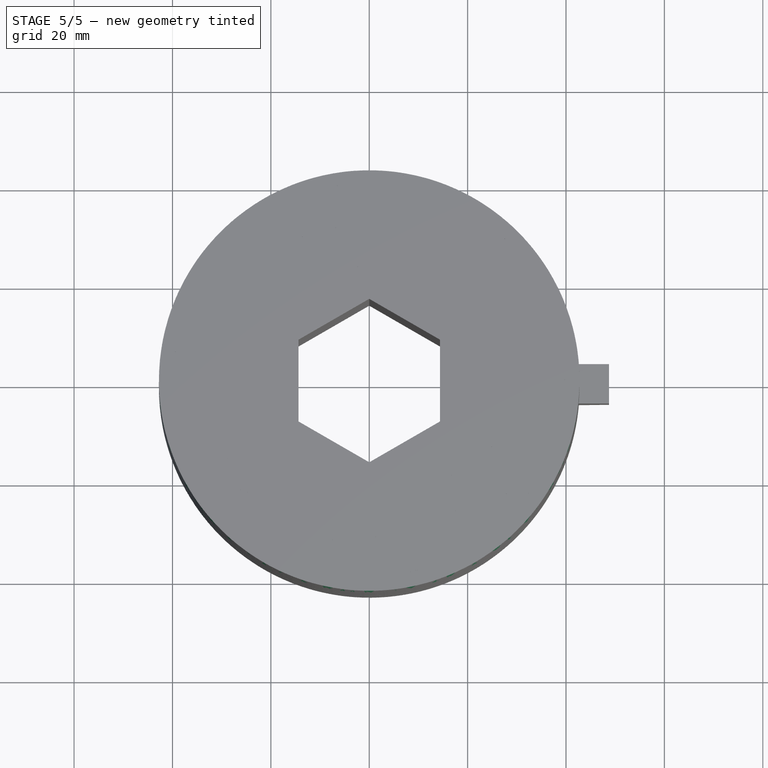
[diagram: stage 5 of 5 — top view after this stage's code; geometry added in this stage tinted green]
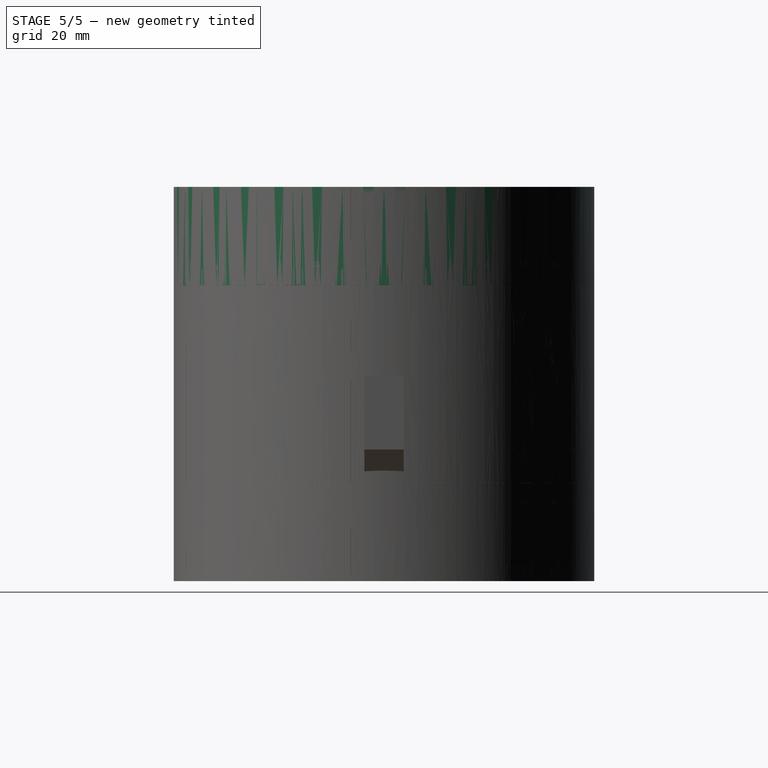
[diagram: stage 5 of 5 — right view after this stage's code; geometry added in this stage tinted green]
FEATURE [PartDesign::Body] Body008  label="Fine Spiral Segment"
  AllowCompound = false
  Group = -> [Binder008,Binder009,AdditiveHelix003,Pocket011]
  Origin = -> Origin016
  Tip = -> Pocket011
FEATURE [App::Point] Origin019
  Role = Origin
FEATURE [App::Point] Origin021
  Role = Origin
FEATURE [App::Point] Origin023
  Role = Origin
FEATURE [PartDesign::FeatureBase] Clone002
  BaseFeature = -> Body005
  Suppressed = false
FEATURE [PartDesign::Body] Body011  label="Extra Fine Fluted"
  AllowCompound = false
  Group = -> [Clone002]
  Origin = -> Origin022
  Placement = pos=(50,0,0) rot=(0,0,1;0rad)
  Tip = -> Clone002
FEATURE [App::Point] Origin025
  Role = Origin
FEATURE [PartDesign::FeatureBase] Clone003
  BaseFeature = -> Body006
  Suppressed = false
FEATURE [PartDesign::Body] Body012  label="Extra Fine Fluted Spiral"
  AllowCompound = false
  Group = -> [Clone003]
  Origin = -> Origin024
  Placement = pos=(150,0,0) rot=(0,0,1;0rad)
  Tip = -> Clone003
FEATURE [App::Point] Origin027
  Role = Origin
FEATURE [Sketcher::SketchObject] Sketch012
  ArcFitTolerance = 1e-06
  AttachmentSupport = -> [XZ_Plane013]
  ExternalTypes = [0]
  FullyConstrained = false
  MakeInternals = false
  MapMode = 5
  Placement = pos=(0,0,0) rot=(1,0,0;1.5708rad)
  expr: Constraints[13] = <<Dimensions>>.segment_width / 4
  expr: Constraints[14] = <<ExtraFineParameters>>.chamfer_angle
  expr: Constraints[15] = <<Dimensions>>.segment_diameter_tight / 2 - <<ExtraFineParameters>>.scallop_depth
  expr: Constraints[16] = <<Dimensions>>.segment_diameter_tight / 2
  sketch-geometry (6):
    g0: LineSegment [constr] StartX=42.75 StartY=20.0375 StartZ=0 EndX=0 EndY=20.0375 EndZ=0
    g1: LineSegment StartX=42.75 StartY=20.0375 StartZ=0 EndX=39.75 EndY=21.7696 EndZ=0
    g2: LineSegment StartX=39.75 StartY=21.7696 StartZ=0 EndX=0 EndY=21.7696 EndZ=0
    g3: LineSegment StartX=0 StartY=21.7696 StartZ=0 EndX=0 EndY=95.3345 EndZ=0
    g4: LineSegment StartX=0 StartY=95.3345 StartZ=0 EndX=42.75 EndY=95.3345 EndZ=0
    g5: LineSegment StartX=42.75 StartY=95.3345 StartZ=0 EndX=42.75 EndY=20.0375 EndZ=0
  constraints (17):
    c: Horizontal(g0)
    c: Coincident(g1,g0)
    c: Coincident(g2,g1)
    c: PointOnObject(g2,g-2)
    c: Horizontal(g2)
    c: Coincident(g3,g2)
    c: PointOnObject(g3,g-2)
    c: Coincident(g4,g3)
    c: Horizontal(g4)
    c: Coincident(g5,g4)
    c: Coincident(g5,g0)
    c: Vertical(g5)
    c: PointOnObject(g0,g-2)
    c: DistanceY(g-1,g0) = 20.0375
    c: Angle(g1,g0) = 0.523599
    c: DistanceX(g2,g2) = 39.75
    c: DistanceX(g4,g4) = 42.75
FEATURE [App::Point] Origin029
  Role = Origin
FEATURE [Sketcher::SketchObject] Sketch013
  ArcFitTolerance = 1e-06
  AttachmentSupport = -> [XZ_Plane014]
  ExternalTypes = [0]
  FullyConstrained = false
  MakeInternals = false
  MapMode = 5
  Placement = pos=(0,0,0) rot=(1,0,0;1.5708rad)
  expr: Constraints[10] = <<Dimensions>>.segment_diameter_tight / 2 - <<ExtraFineParameters>>.scallop_depth
  expr: Constraints[11] = <<Dimensions>>.segment_diameter_tight / 2
  expr: Constraints[20] = <<Dimensions>>.segment_width / 4
  expr: Constraints[9] = <<Dimensions>>.segment_width / 4 * 3
  sketch-geometry (11):
    g0: LineSegment [constr] StartX=42.75 StartY=60.1125 StartZ=0 EndX=0 EndY=60.1125 EndZ=0
    g1: LineSegment StartX=42.75 StartY=60.1125 StartZ=0 EndX=39.75 EndY=59.0206 EndZ=0
    g2: LineSegment StartX=39.75 StartY=59.0206 StartZ=0 EndX=0 EndY=59.0206 EndZ=0
    g3: LineSegment [constr] StartX=42.75 StartY=80.15 StartZ=0 EndX=42.75 EndY=60.1125 EndZ=0
    g4: LineSegment [constr] StartX=42.75 StartY=80.15 StartZ=0 EndX=39.75 EndY=81.2419 EndZ=0
    g5: LineSegment [constr] StartX=39.75 StartY=81.2419 StartZ=0 EndX=0 EndY=81.2419 EndZ=0
    g6: LineSegment [constr] StartX=39.75 StartY=81.2419 StartZ=0 EndX=39.75 EndY=59.0206 EndZ=0
    g7: LineSegment [constr] StartX=0 StartY=81.2419 StartZ=0 EndX=0 EndY=86.9996 EndZ=0
    g8: LineSegment StartX=42.75 StartY=60.1125 StartZ=0 EndX=42.75 EndY=0 EndZ=0
    g9: LineSegment StartX=42.75 StartY=0 StartZ=0 EndX=0 EndY=0 EndZ=0
    g10: LineSegment StartX=0 StartY=59.0206 StartZ=0 EndX=0 EndY=0 EndZ=0
  constraints (30):
    c: Horizontal(g0)
    c: Coincident(g1,g0)
    c: Coincident(g2,g1)
    c: PointOnObject(g2,g-2)
    c: Horizontal(g2)
    c: PointOnObject(g5,g-2)
    c: Coincident(g3,g0)
    c: Vertical(g3)
    c: PointOnObject(g0,g-2)
    c: DistanceY(g-1,g0) = 60.1125
    c: DistanceX(g2,g2) = 39.75
    c: DistanceX(g5,g3) = 42.75
    c: Coincident(g4,g3)
    c: Coincident(g5,g4)
    c: Horizontal(g5)
    c: Angle(g4,g5) = 0.349066
    c: Coincident(g6,g4)
    c: Coincident(g6,g1)
    c: Vertical(g6)
    c: Angle(g2,g1) = 0.349066
    c: DistanceY(g3,g3) = 20.0375
    c: Coincident(g7,g5)
    c: PointOnObject(g7,g-2)
    c: Coincident(g8,g0)
    c: Vertical(g8)
    c: Coincident(g9,g8)
    c: Coincident(g9,g-1)
    c: Horizontal(g9)
    c: Coincident(g10,g2)
    c: Coincident(g10,g9)
FEATURE [Sketcher::SketchObject] Sketch014
  ArcFitTolerance = 1e-06
  AttachmentSupport = -> [XZ_Plane014]
  ExternalTypes = [0]
  FullyConstrained = false
  MakeInternals = false
  MapMode = 5
  Placement = pos=(0,0,0) rot=(1,0,0;1.5708rad)
  expr: Constraints[10] = <<Dimensions>>.segment_diameter_tight / 2 - <<ExtraFineParameters>>.scallop_depth
  expr: Constraints[11] = <<Dimensions>>.segment_diameter_tight / 2
  expr: Constraints[15] = <<ExtraFineParameters>>.chamfer_angle
  expr: Constraints[19] = <<ExtraFineParameters>>.chamfer_angle
  expr: Constraints[20] = <<Dimensions>>.segment_width / 4
  expr: Constraints[9] = <<Dimensions>>.segment_width / 4 * 2
  sketch-geometry (13):
    g0: LineSegment [constr] StartX=42.75 StartY=40.075 StartZ=0 EndX=0 EndY=40.075 EndZ=0
    g1: LineSegment [constr] StartX=42.75 StartY=40.075 StartZ=0 EndX=39.75 EndY=38.3429 EndZ=0
    g2: LineSegment [constr] StartX=39.75 StartY=38.3429 StartZ=0 EndX=0 EndY=38.3429 EndZ=0
    g3: LineSegment [constr] StartX=42.75 StartY=60.1125 StartZ=0 EndX=42.75 EndY=40.075 EndZ=0
    g4: LineSegment StartX=42.75 StartY=60.1125 StartZ=0 EndX=39.75 EndY=61.8446 EndZ=0
    g5: LineSegment StartX=39.75 StartY=61.8446 StartZ=0 EndX=0 EndY=61.8446 EndZ=0
    g6: LineSegment [constr] StartX=39.75 StartY=61.8446 StartZ=0 EndX=39.75 EndY=38.3429 EndZ=0
    g7: LineSegment StartX=0 StartY=61.8446 StartZ=0 EndX=0 EndY=91.9833 EndZ=0
    g8: LineSegment [constr] StartX=42.75 StartY=40.075 StartZ=0 EndX=42.75 EndY=0 EndZ=0
    g9: LineSegment [constr] StartX=42.75 StartY=0 StartZ=0 EndX=0 EndY=0 EndZ=0
    g10: LineSegment [constr] StartX=0 StartY=38.3429 StartZ=0 EndX=0 EndY=0 EndZ=0
    g11: LineSegment StartX=0 StartY=91.9833 StartZ=0 EndX=42.75 EndY=91.9833 EndZ=0
    g12: LineSegment StartX=42.75 StartY=91.9833 StartZ=0 EndX=42.75 EndY=60.1125 EndZ=0
  constraints (35):
    c: Horizontal(g0)
    c: Coincident(g1,g0)
    c: Coincident(g2,g1)
    c: PointOnObject(g2,g-2)
    c: Horizontal(g2)
    c: PointOnObject(g5,g-2)
    c: Coincident(g3,g0)
    c: Vertical(g3)
    c: PointOnObject(g0,g-2)
    c: DistanceY(g-1,g0) = 40.075
    c: DistanceX(g2,g2) = 39.75
    c: DistanceX(g5,g3) = 42.75
    c: Coincident(g4,g3)
    c: Coincident(g5,g4)
    c: Horizontal(g5)
    c: Angle(g4,g5) = 0.523599
    c: Coincident(g6,g4)
    c: Coincident(g6,g1)
    c: Vertical(g6)
    c: Angle(g2,g1) = 0.523599
    c: DistanceY(g3,g3) = 20.0375
    c: Coincident(g7,g5)
    c: PointOnObject(g7,g-2)
    c: Coincident(g8,g0)
    c: Vertical(g8)
    c: Coincident(g9,g8)
    c: Coincident(g9,g-1)
    c: Horizontal(g9)
    c: Coincident(g10,g2)
    c: Coincident(g10,g9)
    c: Coincident(g11,g7)
    c: Horizontal(g11)
    c: Coincident(g12,g11)
    c: Coincident(g12,g3)
    c: Vertical(g12)
FEATURE [App::Point] Origin031
  Role = Origin
FEATURE [Sketcher::SketchObject] Sketch015
  ArcFitTolerance = 1e-06
  AttachmentSupport = -> [XZ_Plane015]
  ExternalTypes = [0]
  FullyConstrained = true
  MakeInternals = false
  MapMode = 5
  Placement = pos=(0,0,0) rot=(1,0,0;1.5708rad)
  expr: Constraints[10] = <<Dimensions>>.segment_diameter_tight / 2
  expr: Constraints[11] = <<Dimensions>>.segment_width / 4
  expr: Constraints[12] = <<ExtraFineParameters>>.chamfer_angle
  expr: Constraints[13] = <<Dimensions>>.segment_diameter_tight / 2 - <<ExtraFineParameters>>.scallop_depth
  sketch-geometry (5):
    g0: LineSegment StartX=0 StartY=0 StartZ=0 EndX=42.75 EndY=0 EndZ=0
    g1: LineSegment StartX=42.75 StartY=0 StartZ=0 EndX=42.75 EndY=20.0375 EndZ=0
    g2: LineSegment StartX=42.75 StartY=20.0375 StartZ=0 EndX=39.75 EndY=21.7696 EndZ=0
    g3: LineSegment StartX=39.75 StartY=21.7696 StartZ=0 EndX=0 EndY=21.7696 EndZ=0
    g4: LineSegment StartX=0 StartY=21.7696 StartZ=0 EndX=0 EndY=0 EndZ=0
  constraints (14):
    c: Coincident(g0,g-1)
    c: Horizontal(g0)
    c: Coincident(g1,g0)
    c: Vertical(g1)
    c: Coincident(g2,g1)
    c: Coincident(g3,g2)
    c: Horizontal(g3)
    c: Coincident(g4,g3)
    c: Coincident(g4,g0)
    c: Vertical(g4)
    c: DistanceX(g0,g0) = 42.75
    c: DistanceY(g1,g1) = 20.0375
    c: Angle(g2,g3) = 0.523599
    c: DistanceX(g3,g3) = 39.75
FEATURE [PartDesign::Revolution] Revolution
  Angle = 360
  Angle2 = 60
  Axis = (0,2e-16,1)
  Base = (0,0,0)
  Placement = pos=(0,0,0) rot=(1,0,0;1.5708rad)
  Profile = -> Sketch015
  ReferenceAxis = -> Sketch015 [V_Axis]
  Refine = true
  Reversed = true
  Suppressed = false
  Type = 0
FEATURE [Sketcher::SketchObject] Sketch016
  ArcFitTolerance = 1e-06
  AttachmentSupport = -> [XZ_Plane015]
  ExternalTypes = [0]
  FullyConstrained = true
  MakeInternals = false
  MapMode = 5
  Placement = pos=(0,0,0) rot=(1,0,0;1.5708rad)
  expr: Constraints[10] = <<Dimensions>>.segment_diameter_tight / 2 - <<ExtraFineParameters>>.scallop_depth
  expr: Constraints[11] = <<ExtraFineParameters>>.chamfer_angle
  expr: Constraints[12] = <<Dimensions>>.segment_width / 4 * 3
  expr: Constraints[13] = <<Dimensions>>.segment_diameter_tight / 2
  expr: Constraints[14] = <<Dimensions>>.segment_width / 4
  sketch-geometry (5):
    g0: LineSegment StartX=0 StartY=58.3804 StartZ=0 EndX=39.75 EndY=58.3804 EndZ=0
    g1: LineSegment StartX=39.75 StartY=58.3804 StartZ=0 EndX=42.75 EndY=60.1125 EndZ=0
    g2: LineSegment StartX=42.75 StartY=60.1125 StartZ=0 EndX=42.75 EndY=80.15 EndZ=0
    g3: LineSegment StartX=42.75 StartY=80.15 StartZ=0 EndX=0 EndY=80.15 EndZ=0
    g4: LineSegment StartX=0 StartY=80.15 StartZ=0 EndX=0 EndY=58.3804 EndZ=0
  constraints (15):
    c: PointOnObject(g0,g-2)
    c: Horizontal(g0)
    c: Coincident(g1,g0)
    c: Coincident(g2,g1)
    c: Vertical(g2)
    c: Coincident(g3,g2)
    c: Horizontal(g3)
    c: Coincident(g4,g3)
    c: Coincident(g4,g0)
    c: Vertical(g4)
    c: DistanceX(g0,g0) = 39.75
    c: Angle(g0,g1) = 0.523599
    c: DistanceY(g-1,g1) = 60.1125
    c: DistanceX(g3,g3) = 42.75
    c: DistanceY(g2,g2) = 20.0375
FEATURE [PartDesign::SubShapeBinder] Binder010
  BindCopyOnChange = 0
  BindMode = 0
  ClaimChildren = false
  Context = -> Body015 [Binder010.]
  Fuse = false
  MakeFace = true
  OffsetFill = false
  OffsetIntersection = false
  OffsetJoinType = 0
  OffsetOpenResult = false
  PartialLoad = false
  Refine = true
  Relative = true
  Support = -> [Body002[Binder002.]]
  _Version = 2
FEATURE [App::Point] Origin033
  Role = Origin
FEATURE [App::Point] Origin035
  Role = Origin
FEATURE [Sketcher::SketchObject] Sketch017
  ArcFitTolerance = 1e-06
  AttachmentSupport = -> [XZ_Plane017]
  ExternalTypes = [0]
  FullyConstrained = true
  MakeInternals = false
  MapMode = 5
  Placement = pos=(0,0,0) rot=(1,0,0;1.5708rad)
  expr: Constraints[10] = <<Dimensions>>.segment_diameter_tight / 2
  expr: Constraints[11] = <<Dimensions>>.segment_width / 4
  expr: Constraints[12] = <<Dimensions>>.segment_diameter_tight / 2 - <<ExtraFineFlutedParameters>>.flute_depth
  expr: Constraints[13] = <<ExtraFineFlutedParameters>>.chamfer_angle
  sketch-geometry (5):
    g0: LineSegment StartX=0 StartY=0 StartZ=0 EndX=42.75 EndY=0 EndZ=0
    g1: LineSegment StartX=42.75 StartY=0 StartZ=0 EndX=42.75 EndY=20.0375 EndZ=0
    g2: LineSegment StartX=0 StartY=21.7696 StartZ=0 EndX=0 EndY=0 EndZ=0
    g3: LineSegment StartX=0 StartY=21.7696 StartZ=0 EndX=39.75 EndY=21.7696 EndZ=0
    g4: LineSegment StartX=39.75 StartY=21.7696 StartZ=0 EndX=42.75 EndY=20.0375 EndZ=0
  constraints (14):
    c: Coincident(g0,g1)
    c: Coincident(g2,g0)
    c: Horizontal(g0)
    c: Vertical(g1)
    c: Vertical(g2)
    c: Coincident(g0,g-1)
    c: Coincident(g3,g2)
    c: Coincident(g4,g3)
    c: Coincident(g4,g1)
    c: Horizontal(g3)
    c: DistanceX(g0,g0) = 42.75
    c: DistanceY(g1,g1) = 20.0375
    c: DistanceX(g3,g3) = 39.75
    c: Angle(g4,g3) = 0.523599
FEATURE [PartDesign::Revolution] Revolution002
  Angle = 360
  Angle2 = 60
  Axis = (0,2e-16,1)
  Base = (0,0,0)
  Placement = pos=(0,0,0) rot=(1,0,0;1.5708rad)
  Profile = -> Sketch017
  ReferenceAxis = -> Sketch017 [V_Axis]
  Refine = true
  Reversed = true
  Suppressed = false
  Type = 0
FEATURE [App::Point] Origin039
  Role = Origin
FEATURE [PartDesign::FeatureBase] Clone008
  BaseFeature = -> Body006
  Suppressed = false
FEATURE [Sketcher::SketchObject] Sketch018
  ArcFitTolerance = 1e-06
  AttachmentSupport = -> [XZ_Plane017]
  ExternalTypes = [0]
  FullyConstrained = false
  MakeInternals = false
  MapMode = 5
  Placement = pos=(0,0,0) rot=(1,0,0;1.5708rad)
  expr: Constraints[10] = <<Dimensions>>.segment_width / 4
  expr: Constraints[11] = <<Dimensions>>.segment_diameter_tight / 2 - <<ExtraFineFlutedParameters>>.flute_depth
  expr: Constraints[12] = <<Dimensions>>.segment_diameter_tight / 2
  sketch-geometry (5):
    g0: LineSegment StartX=0 StartY=20.0375 StartZ=0 EndX=39.75 EndY=20.0375 EndZ=0
    g1: LineSegment StartX=39.75 StartY=20.0375 StartZ=0 EndX=42.75 EndY=18.9456 EndZ=0
    g2: LineSegment StartX=42.75 StartY=18.9456 StartZ=0 EndX=42.75 EndY=96.3705 EndZ=0
    g3: LineSegment StartX=42.75 StartY=96.3705 StartZ=0 EndX=0 EndY=96.3705 EndZ=0
    g4: LineSegment StartX=0 StartY=96.3705 StartZ=0 EndX=0 EndY=20.0375 EndZ=0
  constraints (14):
    c: PointOnObject(g0,g-2)
    c: Horizontal(g0)
    c: Coincident(g1,g0)
    c: Coincident(g2,g1)
    c: Vertical(g2)
    c: Coincident(g3,g2)
    c: PointOnObject(g3,g-2)
    c: Horizontal(g3)
    c: Coincident(g4,g3)
    c: Coincident(g4,g0)
    c: DistanceY(g-1,g0) = 20.0375
    c: DistanceX(g0,g0) = 39.75
    c: DistanceX(g-1,g1) = 42.75
    c: Angle(g1,g0) = 0.349066
FEATURE [Sketcher::SketchObject] Sketch019
  ArcFitTolerance = 1e-06
  AttachmentSupport = -> [XZ_Plane019]
  ExternalTypes = [0]
  FullyConstrained = false
  MakeInternals = false
  MapMode = 5
  Placement = pos=(0,0,0) rot=(1,0,0;1.5708rad)
  expr: Constraints[10] = <<Dimensions>>.segment_diameter_tight / 2 - <<ExtraFineFlutedParameters>>.flute_depth
  expr: Constraints[11] = <<Dimensions>>.segment_diameter_tight / 2
  expr: Constraints[12] = <<ExtraFineFlutedParameters>>.chamfer_angle
  expr: Constraints[13] = <<Dimensions>>.segment_width / 4
  sketch-geometry (5):
    g0: LineSegment StartX=0 StartY=21.7696 StartZ=0 EndX=39.75 EndY=21.7696 EndZ=0
    g1: LineSegment StartX=39.75 StartY=21.7696 StartZ=0 EndX=42.75 EndY=20.0375 EndZ=0
    g2: LineSegment StartX=42.75 StartY=20.0375 StartZ=0 EndX=42.75 EndY=96.3705 EndZ=0
    g3: LineSegment StartX=42.75 StartY=96.3705 StartZ=0 EndX=0 EndY=96.3705 EndZ=0
    g4: LineSegment StartX=0 StartY=96.3705 StartZ=0 EndX=0 EndY=21.7696 EndZ=0
  constraints (14):
    c: PointOnObject(g0,g-2)
    c: Horizontal(g0)
    c: Coincident(g1,g0)
    c: Coincident(g2,g1)
    c: Vertical(g2)
    c: Coincident(g3,g2)
    c: PointOnObject(g3,g-2)
    c: Horizontal(g3)
    c: Coincident(g4,g3)
    c: Coincident(g4,g0)
    c: DistanceX(g0,g0) = 39.75
    c: DistanceX(g-1,g1) = 42.75
    c: Angle(g1,g0) = 0.523599
    c: DistanceY(g-1,g1) = 20.0375
FEATURE [PartDesign::Groove] Groove002
  Angle = 360
  Angle2 = 60
  Axis = (0,2e-16,1)
  Base = (0,0,0)
  BaseFeature = -> Clone008
  Profile = -> Sketch019
  ReferenceAxis = -> Sketch019 [V_Axis]
  Refine = true
  Suppressed = false
  Type = 0
FEATURE [PartDesign::Body] Body019  label="canola test2 section2"
  AllowCompound = false
  Group = -> [Clone008,Sketch019,Groove002]
  Origin = -> Origin038
  Placement = pos=(0,0,20.0375) rot=(0,0,1;0rad)
  Tip = -> Groove002
  expr: .Placement.Base.z = <<Dimensions>>.segment_width / 4
FEATURE [PartDesign::Boolean] Boolean002
  BaseFeature = -> Revolution002
  Group = -> [Body019]
  Suppressed = false
  Type = 0
  UsePlacement = true
FEATURE [PartDesign::Body] Body020
  AllowCompound = false
  Group = -> [Clone009,Sketch020,Groove003]
  Origin = -> Origin040
  Placement = pos=(0,0,-20.0375) rot=(0,0,1;0rad)
  Tip = -> Groove003
  expr: .Placement.Base.z = -<<Dimensions>>.segment_width / 4
FEATURE [PartDesign::Boolean] Boolean003
  BaseFeature = -> Boolean002
  Group = -> [Body020]
  Suppressed = false
  Type = 0
  UsePlacement = true
FEATURE [Sketcher::SketchObject] Sketch021
  ArcFitTolerance = 1e-06
  AttachmentSupport = -> [XZ_Plane017]
  ExternalTypes = [0]
  FullyConstrained = true
  MakeInternals = false
  MapMode = 5
  Placement = pos=(0,0,0) rot=(1,0,0;1.5708rad)
  expr: Constraints[10] = <<Dimensions>>.segment_diameter_tight / 2 - <<ExtraFineFlutedParameters>>.flute_depth
  expr: Constraints[11] = <<Dimensions>>.segment_diameter_tight / 2
  expr: Constraints[12] = <<Dimensions>>.segment_width / 4
  expr: Constraints[13] = <<ExtraFineFlutedParameters>>.chamfer_angle
  expr: Constraints[14] = <<Dimensions>>.segment_width
  sketch-geometry (5):
    g0: LineSegment StartX=0 StartY=80.15 StartZ=0 EndX=42.75 EndY=80.15 EndZ=0
    g1: LineSegment StartX=42.75 StartY=80.15 StartZ=0 EndX=42.75 EndY=60.1125 EndZ=0
    g2: LineSegment StartX=42.75 StartY=60.1125 StartZ=0 EndX=39.75 EndY=58.3804 EndZ=0
    g3: LineSegment StartX=39.75 StartY=58.3804 StartZ=0 EndX=0 EndY=58.3804 EndZ=0
    g4: LineSegment StartX=0 StartY=80.15 StartZ=0 EndX=0 EndY=58.3804 EndZ=0
  constraints (15):
    c: PointOnObject(g0,g-2)
    c: Horizontal(g0)
    c: Coincident(g1,g0)
    c: Vertical(g1)
    c: Coincident(g2,g1)
    c: Coincident(g3,g2)
    c: PointOnObject(g3,g-2)
    c: Horizontal(g3)
    c: Coincident(g4,g0)
    c: Coincident(g4,g3)
    c: DistanceX(g3,g3) = 39.75
    c: DistanceX(g0,g0) = 42.75
    c: DistanceY(g1,g1) = 20.0375
    c: Angle(g3,g2) = 0.523599
    c: DistanceY(g-1,g0) = 80.15
FEATURE [PartDesign::Revolution] Revolution003
  Angle = 360
  Angle2 = 60
  Axis = (0,2e-16,1)
  Base = (0,0,0)
  BaseFeature = -> Boolean003
  Profile = -> Sketch021
  ReferenceAxis = -> Sketch021 [V_Axis]
  Refine = true
  Reversed = true
  Suppressed = false
  Type = 0
FEATURE [PartDesign::SubShapeBinder] Binder011
  BindCopyOnChange = 0
  BindMode = 0
  ClaimChildren = false
  Context = -> Body017 [Binder011.]
  Fuse = false
  MakeFace = true
  OffsetFill = false
  OffsetIntersection = false
  OffsetJoinType = 0
  OffsetOpenResult = false
  PartialLoad = false
  Refine = true
  Relative = true
  Support = -> [Body005[Sketch007.]]
  _Version = 2
FEATURE [PartDesign::Pocket] Pocket013
  BaseFeature = -> Revolution003
  Direction = (0,0,-1)
  Length = 5
  Length2 = 5
  Profile = -> Binder011
  Refine = true
  Reversed = true
  SideType = 0
  Suppressed = false
  Type = 1
  Type2 = 0
FEATURE [PartDesign::Body] Body017  label="Canola Test2 Segment"
  AllowCompound = false
  Group = -> [Sketch017,Revolution002,Sketch018,Boolean002,Boolean003,Sketch021,Revolution003,Binder011,Pocket013]
  Origin = -> Origin034
  Tip = -> Pocket013
FEATURE [App::Point] Origin043
  Role = Origin
FEATURE [PartDesign::FeatureBase] Clone010
  BaseFeature = -> Body017
  Suppressed = false
FEATURE [PartDesign::Body] Body002  label="Extra Fine Segment"
  AllowCompound = false
  Group = -> [Sketch004,Sketch005,Pad005,Pocket004,PolarPattern004,Sketch031,Pocket016]
  Origin = -> Origin004
  Tip = -> Pocket016
FEATURE [PartDesign::FeatureBase] Clone001
  BaseFeature = -> Body002
  Suppressed = false
FEATURE [PartDesign::Body] Body004  label="Extra Fine Spiral Segment"
  AllowCompound = false
  Group = -> [Binder004,AdditiveHelix001,Binder014,Pocket017]
  Origin = -> Origin008
  Tip = -> Pocket017
FEATURE [PartDesign::FeatureBase] Clone
  BaseFeature = -> Body004
  Suppressed = false
FEATURE [PartDesign::Body] Body009  label="Extra Fine Spiral"
  AllowCompound = false
  Group = -> [Clone]
  Origin = -> Origin018
  Placement = pos=(-50,0,0) rot=(0,0,1;0rad)
  Tip = -> Clone
FEATURE [PartDesign::FeatureBase] Clone004
  BaseFeature = -> Body004
  Suppressed = false
FEATURE [PartDesign::Groove] Groove
  Angle = 360
  Angle2 = 60
  Axis = (0,2e-16,1)
  Base = (0,0,0)
  BaseFeature = -> Clone004
  Profile = -> Sketch012
  ReferenceAxis = -> Sketch012 [V_Axis]
  Refine = true
  Suppressed = false
  Type = 0
FEATURE [PartDesign::FeatureBase] Clone005
  BaseFeature = -> Body004
  Suppressed = false
FEATURE [PartDesign::Groove] Groove001
  Angle = 360
  Angle2 = 60
  Axis = (0,2e-16,1)
  Base = (0,0,0)
  BaseFeature = -> Clone005
  Profile = -> Sketch013
  ReferenceAxis = -> Sketch013 [V_Axis]
  Refine = true
  Suppressed = false
  Type = 0
FEATURE [PartDesign::Body] Body014  label="canolatest1_section3"
  AllowCompound = false
  Group = -> [Clone005,Sketch013,Groove001,Sketch014]
  Origin = -> Origin028
  Placement = pos=(0,0,-40.075) rot=(0,0,1;0rad)
  Tip = -> Groove001
  expr: .Placement.Base.z = -<<Dimensions>>.segment_width / 4 * 2
FEATURE [PartDesign::Boolean] Boolean
  BaseFeature = -> Groove
  Group = -> [Body014]
  Suppressed = false
  Type = 0
  UsePlacement = true
FEATURE [PartDesign::Body] Body013  label="canolatest1_section2"
  AllowCompound = false
  Group = -> [Clone004,Sketch012,Groove,Boolean]
  Origin = -> Origin026
  Placement = pos=(0,0,20.0375) rot=(0,0,1;0rad)
  Tip = -> Boolean
  expr: .Placement.Base.z = <<Dimensions>>.segment_width / 4
FEATURE [PartDesign::Boolean] Boolean001
  BaseFeature = -> Revolution
  Group = -> [Body013]
  Suppressed = false
  Type = 0
  UsePlacement = true
FEATURE [PartDesign::Revolution] Revolution001
  Angle = 360
  Angle2 = 60
  Axis = (0,2e-16,1)
  Base = (0,0,0)
  BaseFeature = -> Boolean001
  Profile = -> Sketch016
  ReferenceAxis = -> Sketch016 [V_Axis]
  Refine = true
  Reversed = true
  Suppressed = false
  Type = 0
FEATURE [PartDesign::Pocket] Pocket012
  BaseFeature = -> Revolution001
  Direction = (0,0,-1)
  Length = 5
  Length2 = 5
  Profile = -> Binder010
  Refine = true
  Reversed = true
  SideType = 0
  Suppressed = false
  Type = 1
  Type2 = 0
FEATURE [PartDesign::Body] Body015  label="Canola Test1 Segment"
  AllowCompound = false
  Group = -> [Sketch015,Revolution,Boolean001,Sketch016,Revolution001,Binder010,Pocket012]
  Origin = -> Origin030
  Tip = -> Pocket012
FEATURE [PartDesign::FeatureBase] Clone006
  BaseFeature = -> Body015
  Suppressed = false
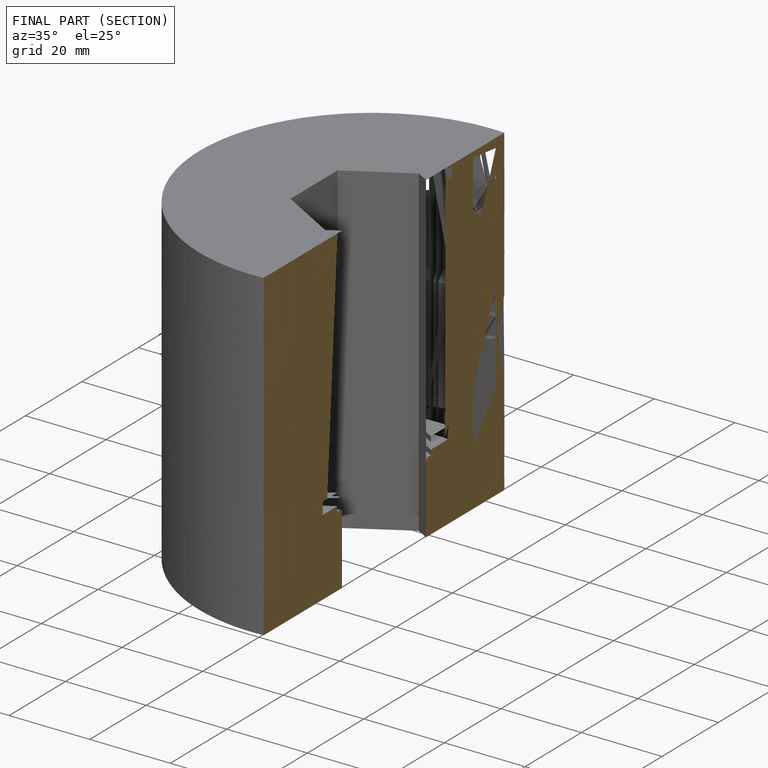
[diagram: finished part — half-section view (interior)]
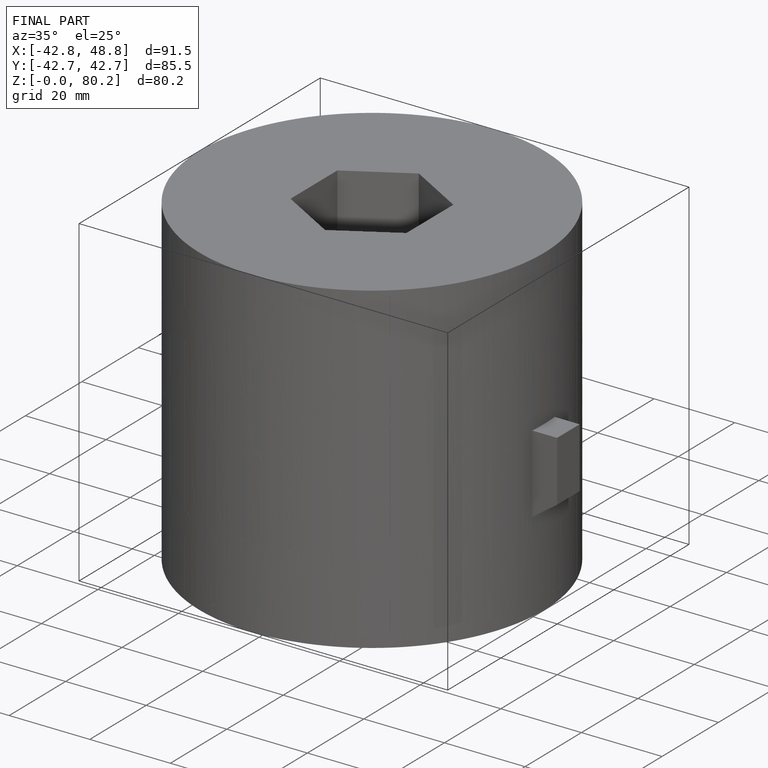
[diagram: finished part — iso view with bounding-box wireframe]
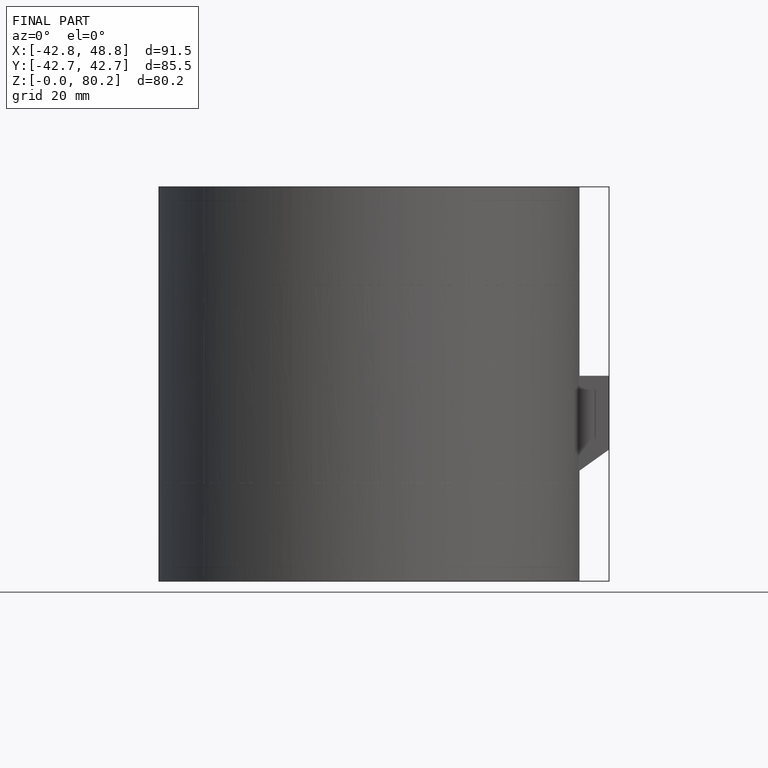
[diagram: finished part — front view with bounding-box wireframe]
